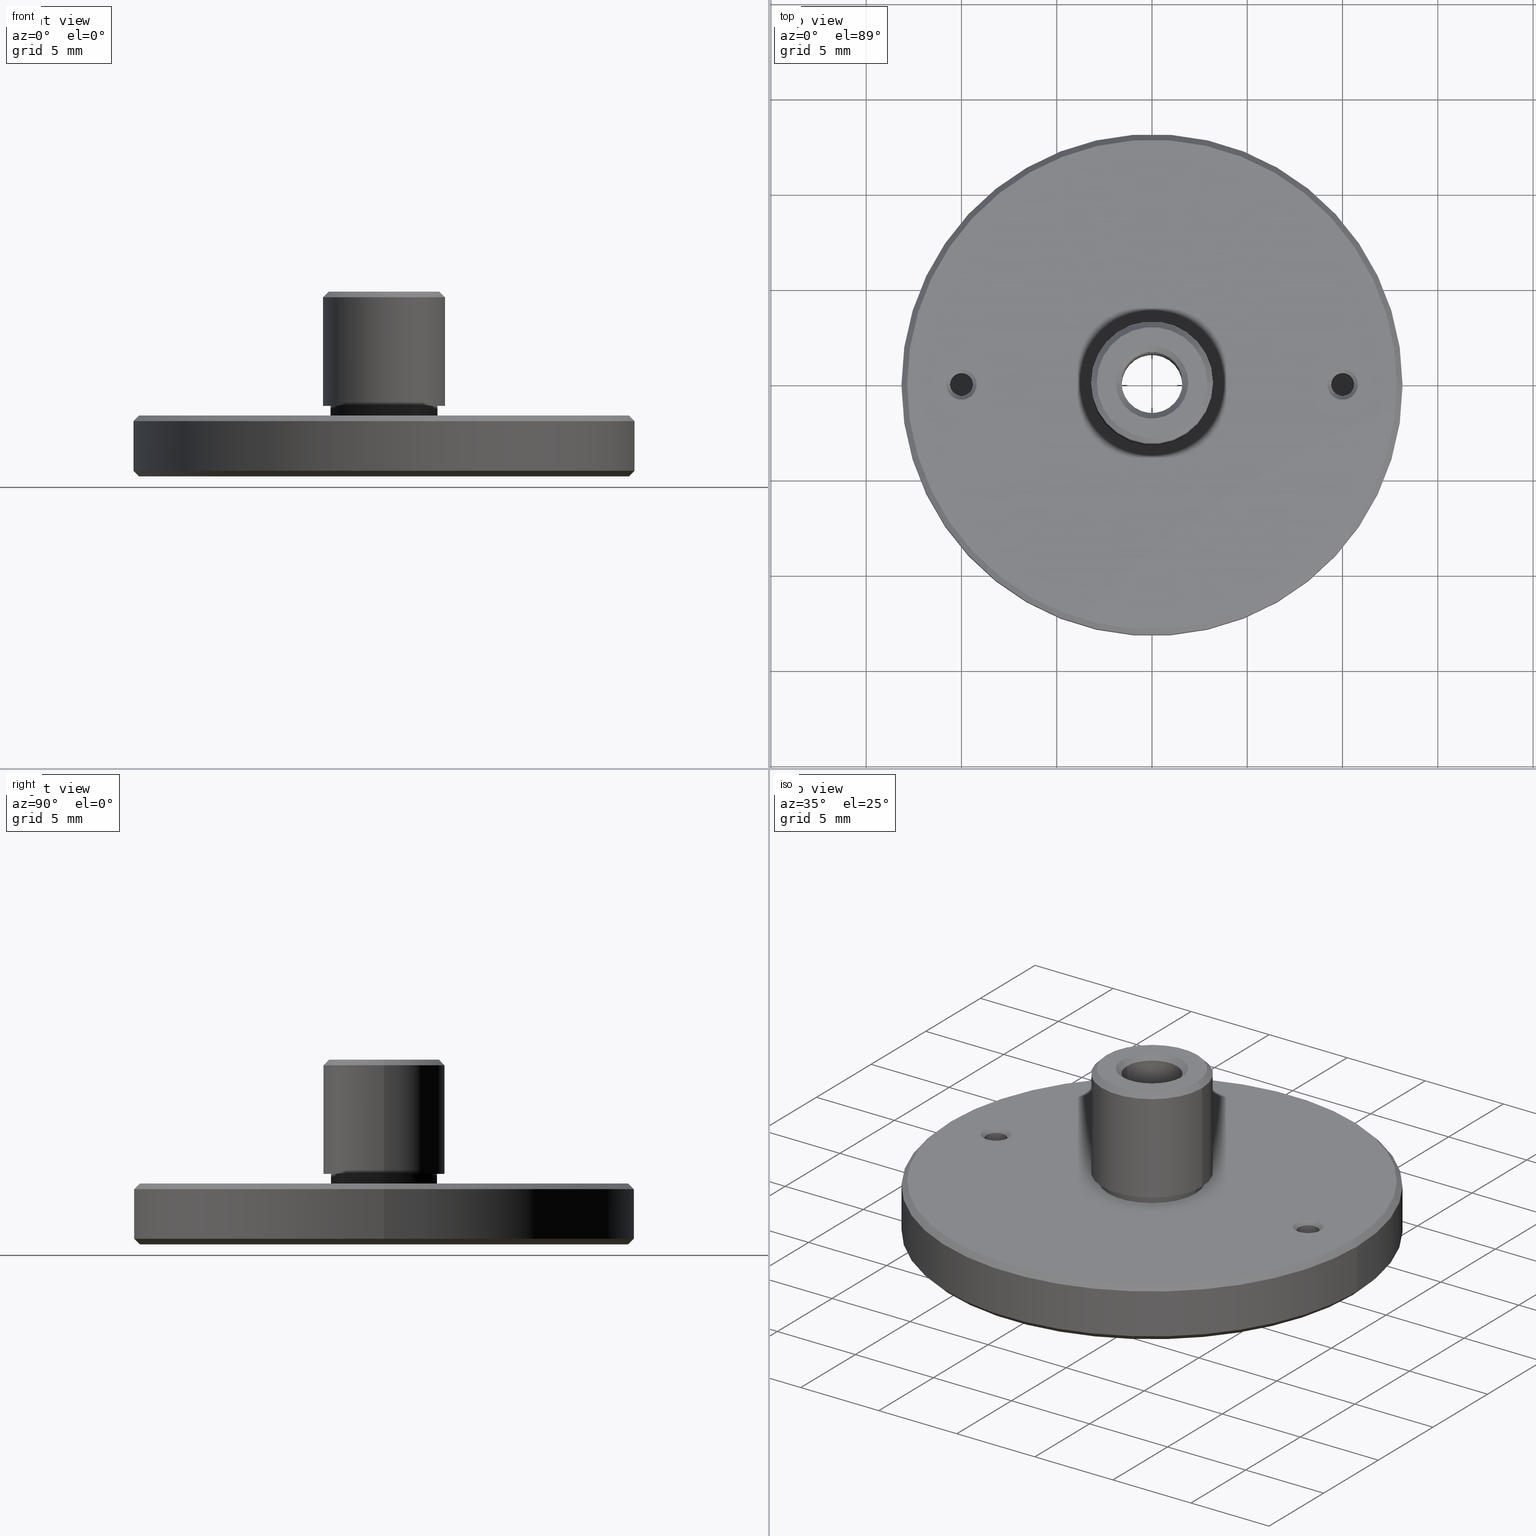
[diagram: canonical four-view strip — front | top / right | iso, engineering-drawing reading convention]
A machine part, canonical four-view strip (front | top / right | iso — engineering-drawing reading convention). The complete STEP part file that produces these views, byte-faithful:
ISO-10303-21;
HEADER;
FILE_DESCRIPTION (( 'STEP AP203' ),
    '1' );
FILE_NAME ('528304�����˷��� SMA��ͷ SM1������.STEP',
    '2023-07-28T03:24:24',
    ( 'Windows User' ),
    ( 'P R C' ),
    'SwSTEP 2.0',
    'SolidWorks 2020',
    '' );
FILE_SCHEMA (( 'CONFIG_CONTROL_DESIGN' ));
ENDSEC;

DATA;
#1 = ORIENTED_EDGE ( 'NONE', *, *, #421, .F. ) ;
#2 = CARTESIAN_POINT ( 'NONE',  ( 1.600000000000000089, 0.000000000000000000, 0.3000000000000000444 ) ) ;
#3 = DIRECTION ( 'NONE',  ( 0.7071067811865450192, 8.659560562354902043E-17, -0.7071067811865500152 ) ) ;
#4 = ORIENTED_EDGE ( 'NONE', *, *, #708, .T. ) ;
#5 = AXIS2_PLACEMENT_3D ( 'NONE', #737, #36, #343 ) ;
#6 = DIRECTION ( 'NONE',  ( 1.000000000000000000, 0.000000000000000000, -4.336808689942018525E-15 ) ) ;
#7 = FACE_OUTER_BOUND ( 'NONE', #330, .T. ) ;
#8 = ORIENTED_EDGE ( 'NONE', *, *, #310, .F. ) ;
#9 = AXIS2_PLACEMENT_3D ( 'NONE', #472, #252, #542 ) ;
#10 = CARTESIAN_POINT ( 'NONE',  ( 0.000000000000000000, 0.000000000000000000, 3.200000000000091660 ) ) ;
#11 = CARTESIAN_POINT ( 'NONE',  ( -12.85000000000000142, 1.573671136904349257E-15, 0.000000000000000000 ) ) ;
#12 = EDGE_LOOP ( 'NONE', ( #459, #114, #479, #253 ) ) ;
#13 = DIRECTION ( 'NONE',  ( 1.000000000000000000, 0.000000000000000000, 0.000000000000000000 ) ) ;
#14 = DIRECTION ( 'NONE',  ( -0.7071067811865483499, 8.659560562354942719E-17, 0.7071067811865467956 ) ) ;
#15 = PERSON_AND_ORGANIZATION ( #385, #897 ) ;
#16 = DIRECTION ( 'NONE',  ( -0.000000000000000000, -0.000000000000000000, 1.000000000000000000 ) ) ;
#17 = VECTOR ( 'NONE', #3, 1000.000000000000000 ) ;
#18 = ADVANCED_FACE ( 'NONE', ( #470 ), #121, .F. ) ;
#19 = EDGE_CURVE ( 'NONE', #111, #56, #547, .T. ) ;
#20 = DIRECTION ( 'NONE',  ( -1.000000000000000000, 0.000000000000000000, 0.000000000000000000 ) ) ;
#21 = COORDINATED_UNIVERSAL_TIME_OFFSET ( 8, 0, .AHEAD. ) ;
#22 = ORIENTED_EDGE ( 'NONE', *, *, #19, .F. ) ;
#23 = FACE_BOUND ( 'NONE', #383, .T. ) ;
#24 = CIRCLE ( 'NONE', #545, 13.15000000000000036 ) ;
#25 = DIRECTION ( 'NONE',  ( -0.7071067811865453523, 8.659560562354906974E-17, 0.7071067811865496822 ) ) ;
#26 = ORIENTED_EDGE ( 'NONE', *, *, #476, .F. ) ;
#27 = DIRECTION ( 'NONE',  ( 1.000000000000000000, 0.000000000000000000, 0.000000000000000000 ) ) ;
#28 = EDGE_CURVE ( 'NONE', #314, #906, #474, .T. ) ;
#29 = CARTESIAN_POINT ( 'NONE',  ( 12.85000000000000142, 0.000000000000000000, 0.000000000000000000 ) ) ;
#30 = ORIENTED_EDGE ( 'NONE', *, *, #546, .T. ) ;
#31 = CARTESIAN_POINT ( 'NONE',  ( -1.899999999999930633, 2.326828918379886069E-16, 9.699999999999931788 ) ) ;
#32 = CIRCLE ( 'NONE', #595, 3.200000000000000178 ) ;
#33 = DIRECTION ( 'NONE',  ( 1.000000000000000000, 0.000000000000000000, 0.000000000000000000 ) ) ;
#34 = DATE_TIME_ROLE ( 'creation_date' ) ;
#35 = EDGE_LOOP ( 'NONE', ( #388, #431 ) ) ;
#36 = DIRECTION ( 'NONE',  ( -0.000000000000000000, -0.000000000000000000, -1.000000000000000000 ) ) ;
#37 = AXIS2_PLACEMENT_3D ( 'NONE', #697, #627, #186 ) ;
#38 = AXIS2_PLACEMENT_3D ( 'NONE', #300, #730, #20 ) ;
#39 = EDGE_CURVE ( 'NONE', #434, #918, #213, .T. ) ;
#40 = VECTOR ( 'NONE', #198, 1000.000000000000000 ) ;
#41 = CARTESIAN_POINT ( 'NONE',  ( 10.00000000000000000, 0.000000000000000000, 1.700000000000000178 ) ) ;
#42 = CARTESIAN_POINT ( 'NONE',  ( 0.000000000000000000, 0.000000000000000000, 2.899999999999902656 ) ) ;
#43 = ORIENTED_EDGE ( 'NONE', *, *, #844, .T. ) ;
#44 = DIRECTION ( 'NONE',  ( -0.000000000000000000, 0.000000000000000000, -1.000000000000000000 ) ) ;
#45 = CARTESIAN_POINT ( 'NONE',  ( 9.200000000000018829, 9.797174393178595655E-17, 3.199999999999981082 ) ) ;
#46 = FACE_OUTER_BOUND ( 'NONE', #311, .T. ) ;
#47 = VERTEX_POINT ( 'NONE', #324 ) ;
#48 = LINE ( 'NONE', #331, #40 ) ;
#49 = LOCAL_TIME ( 11, 24, 24.00000000000000000, #878 ) ;
#50 = CIRCLE ( 'NONE', #688, 0.5999999999999998668 ) ;
#51 = EDGE_CURVE ( 'NONE', #909, #243, #581, .T. ) ;
#52 = AXIS2_PLACEMENT_3D ( 'NONE', #634, #430, #284 ) ;
#53 = CARTESIAN_POINT ( 'NONE',  ( 9.392800000000001148, -0.6072000000000000730, 1.700000000000000178 ) ) ;
#54 = PLANE ( 'NONE',  #436 ) ;
#55 = EDGE_CURVE ( 'NONE', #319, #141, #815, .T. ) ;
#56 = VERTEX_POINT ( 'NONE', #488 ) ;
#57 = DIRECTION ( 'NONE',  ( 1.000000000000000000, 0.000000000000000000, 0.000000000000000000 ) ) ;
#58 = LOCAL_TIME ( 11, 24, 24.00000000000000000, #524 ) ;
#59 = CARTESIAN_POINT ( 'NONE',  ( 10.00000000000000000, 0.000000000000000000, 1.700000000000000178 ) ) ;
#60 = EDGE_LOOP ( 'NONE', ( #307, #857, #556, #820 ) ) ;
#61 = EDGE_CURVE ( 'NONE', #133, #485, #272, .T. ) ;
#62 = ORIENTED_EDGE ( 'NONE', *, *, #844, .F. ) ;
#63 = CARTESIAN_POINT ( 'NONE',  ( -10.00000000000000000, 0.000000000000000000, 3.000000000000002665 ) ) ;
#64 = DIRECTION ( 'NONE',  ( -1.000000000000000000, 0.000000000000000000, 7.387415563095148275E-15 ) ) ;
#65 = ORIENTED_EDGE ( 'NONE', *, *, #411, .T. ) ;
#66 = CONICAL_SURFACE ( 'NONE', #195, 12.85000000000000142, 0.7853981633974452814 ) ;
#67 = ADVANCED_FACE ( 'NONE', ( #46 ), #66, .T. ) ;
#68 = DIRECTION ( 'NONE',  ( -1.000000000000000000, 0.000000000000000000, 0.000000000000000000 ) ) ;
#69 = ORIENTED_EDGE ( 'NONE', *, *, #217, .T. ) ;
#70 = APPLICATION_PROTOCOL_DEFINITION ( 'international standard', 'config_control_design', 1994, #374 ) ;
#71 = EDGE_CURVE ( 'NONE', #442, #335, #345, .T. ) ;
#72 = DIRECTION ( 'NONE',  ( 0.000000000000000000, -0.000000000000000000, 1.000000000000000000 ) ) ;
#73 = CONICAL_SURFACE ( 'NONE', #332, 12.85000000000000142, 0.7853981633974447263 ) ;
#74 = AXIS2_PLACEMENT_3D ( 'NONE', #327, #113, #401 ) ;
#75 = ORIENTED_EDGE ( 'NONE', *, *, #582, .F. ) ;
#76 = ORIENTED_EDGE ( 'NONE', *, *, #582, .T. ) ;
#77 = CARTESIAN_POINT ( 'NONE',  ( 0.000000000000000000, 0.000000000000000000, 3.700000000000000178 ) ) ;
#78 = FACE_OUTER_BOUND ( 'NONE', #60, .T. ) ;
#79 = ORIENTED_EDGE ( 'NONE', *, *, #227, .T. ) ;
#80 = DIRECTION ( 'NONE',  ( -0.000000000000000000, -0.000000000000000000, 1.000000000000000000 ) ) ;
#81 = DIRECTION ( 'NONE',  ( 0.000000000000000000, -0.000000000000000000, 1.000000000000000000 ) ) ;
#82 = ADVANCED_FACE ( 'NONE', ( #538 ), #233, .F. ) ;
#83 = ORIENTED_EDGE ( 'NONE', *, *, #507, .T. ) ;
#84 = VECTOR ( 'NONE', #180, 999.9999999999998863 ) ;
#85 = CONICAL_SURFACE ( 'NONE', #631, 2.899999999999999911, 0.7853981633974490562 ) ;
#86 = VECTOR ( 'NONE', #14, 999.9999999999998863 ) ;
#87 = ORIENTED_EDGE ( 'NONE', *, *, #224, .F. ) ;
#88 =( NAMED_UNIT ( * ) SI_UNIT ( $, .STERADIAN. ) SOLID_ANGLE_UNIT ( ) );
#89 = CYLINDRICAL_SURFACE ( 'NONE', #321, 13.15000000000000036 ) ;
#90 = APPROVAL_DATE_TIME ( #391, #463 ) ;
#91 = PLANE ( 'NONE',  #558 ) ;
#92 = EDGE_CURVE ( 'NONE', #678, #442, #136, .T. ) ;
#93 = DIRECTION ( 'NONE',  ( -0.000000000000000000, -0.000000000000000000, -1.000000000000000000 ) ) ;
#94 = VECTOR ( 'NONE', #484, 1000.000000000000000 ) ;
#95 = VERTEX_POINT ( 'NONE', #749 ) ;
#96 = DIRECTION ( 'NONE',  ( -0.7071067811865481278, 0.000000000000000000, -0.7071067811865470176 ) ) ;
#97 = AXIS2_PLACEMENT_3D ( 'NONE', #776, #780, #710 ) ;
#98 = UNCERTAINTY_MEASURE_WITH_UNIT (LENGTH_MEASURE( 1.000000000000000082E-05 ), #774, 'distance_accuracy_value', 'NONE');
#99 = EDGE_CURVE ( 'NONE', #678, #368, #912, .T. ) ;
#100 = CARTESIAN_POINT ( 'NONE',  ( 0.000000000000000000, 0.000000000000000000, 9.399999999999963052 ) ) ;
#101 = PERSON_AND_ORGANIZATION ( #385, #897 ) ;
#102 = ORIENTED_EDGE ( 'NONE', *, *, #444, .F. ) ;
#103 = DIRECTION ( 'NONE',  ( -1.000000000000000000, 0.000000000000000000, 0.000000000000000000 ) ) ;
#104 = CIRCLE ( 'NONE', #851, 3.200000000000000178 ) ;
#105 = DIRECTION ( 'NONE',  ( -1.000000000000000000, 0.000000000000000000, 0.000000000000000000 ) ) ;
#106 = VERTEX_POINT ( 'NONE', #606 ) ;
#107 = CARTESIAN_POINT ( 'NONE',  ( 2.799999999999999822, 0.000000000000000000, 3.700000000000000178 ) ) ;
#108 = FACE_OUTER_BOUND ( 'NONE', #35, .T. ) ;
#109 = SHAPE_DEFINITION_REPRESENTATION ( #429, #458 ) ;
#110 = APPLICATION_CONTEXT ( 'configuration controlled 3d designs of mechanical parts and assemblies' ) ;
#111 = VERTEX_POINT ( 'NONE', #754 ) ;
#112 = CARTESIAN_POINT ( 'NONE',  ( -3.200000000000000178, 0.000000000000000000, 9.400000000000000355 ) ) ;
#113 = DIRECTION ( 'NONE',  ( 0.000000000000000000, -0.000000000000000000, 1.000000000000000000 ) ) ;
#114 = ORIENTED_EDGE ( 'NONE', *, *, #516, .T. ) ;
#115 = DIRECTION ( 'NONE',  ( 0.000000000000000000, 0.000000000000000000, -1.000000000000000000 ) ) ;
#116 = AXIS2_PLACEMENT_3D ( 'NONE', #209, #72, #491 ) ;
#117 = APPROVAL_PERSON_ORGANIZATION ( #793, #463, #592 ) ;
#118 = CYLINDRICAL_SURFACE ( 'NONE', #338, 3.200000000000000178 ) ;
#119 = AXIS2_PLACEMENT_3D ( 'NONE', #238, #382, #591 ) ;
#120 = DIRECTION ( 'NONE',  ( 0.000000000000000000, 0.000000000000000000, -1.000000000000000000 ) ) ;
#121 = CYLINDRICAL_SURFACE ( 'NONE', #347, 1.600000000000000089 ) ;
#122 = DIRECTION ( 'NONE',  ( -1.000000000000000000, 0.000000000000000000, 0.000000000000000000 ) ) ;
#123 = ADVANCED_FACE ( 'NONE', ( #888 ), #85, .T. ) ;
#124 = ADVANCED_FACE ( 'NONE', ( #818 ), #672, .F. ) ;
#125 = CYLINDRICAL_SURFACE ( 'NONE', #764, 0.5999999999999998668 ) ;
#126 = DIRECTION ( 'NONE',  ( 1.000000000000000000, 0.000000000000000000, 0.000000000000000000 ) ) ;
#127 = VERTEX_POINT ( 'NONE', #611 ) ;
#128 = DIRECTION ( 'NONE',  ( 0.000000000000000000, -0.000000000000000000, 1.000000000000000000 ) ) ;
#129 = VECTOR ( 'NONE', #798, 1000.000000000000000 ) ;
#130 = EDGE_CURVE ( 'NONE', #133, #127, #352, .T. ) ;
#131 = DIRECTION ( 'NONE',  ( 1.000000000000000000, 0.000000000000000000, 0.000000000000000000 ) ) ;
#132 = ORIENTED_EDGE ( 'NONE', *, *, #771, .T. ) ;
#133 = VERTEX_POINT ( 'NONE', #200 ) ;
#134 = CYLINDRICAL_SURFACE ( 'NONE', #648, 3.200000000000000178 ) ;
#135 = VECTOR ( 'NONE', #295, 1000.000000000000000 ) ;
#136 = LINE ( 'NONE', #473, #317 ) ;
#137 = CIRCLE ( 'NONE', #280, 0.7999999999999812816 ) ;
#138 = EDGE_LOOP ( 'NONE', ( #736, #603 ) ) ;
#139 = VERTEX_POINT ( 'NONE', #140 ) ;
#140 = CARTESIAN_POINT ( 'NONE',  ( -1.899999999999999911, 0.000000000000000000, 0.000000000000000000 ) ) ;
#141 = VERTEX_POINT ( 'NONE', #543 ) ;
#142 = ADVANCED_FACE ( 'NONE', ( #559 ), #550, .F. ) ;
#143 = CARTESIAN_POINT ( 'NONE',  ( 1.899999999999999911, 2.326828918379971365E-16, 0.000000000000000000 ) ) ;
#144 = CIRCLE ( 'NONE', #655, 0.7999999999999812816 ) ;
#145 = ORIENTED_EDGE ( 'NONE', *, *, #612, .T. ) ;
#146 = ORIENTED_EDGE ( 'NONE', *, *, #99, .F. ) ;
#147 = DIRECTION ( 'NONE',  ( -0.000000000000000000, -0.000000000000000000, -1.000000000000000000 ) ) ;
#148 = DIRECTION ( 'NONE',  ( 0.000000000000000000, 0.000000000000000000, -1.000000000000000000 ) ) ;
#149 = CC_DESIGN_APPROVAL ( #645, ( #235 ) ) ;
#150 = EDGE_LOOP ( 'NONE', ( #378, #843, #607, #784 ) ) ;
#151 = DIRECTION ( 'NONE',  ( 1.000000000000000000, 0.000000000000000000, 0.000000000000000000 ) ) ;
#152 = EDGE_CURVE ( 'NONE', #363, #56, #599, .T. ) ;
#153 = FACE_OUTER_BOUND ( 'NONE', #12, .T. ) ;
#154 = ORIENTED_EDGE ( 'NONE', *, *, #512, .F. ) ;
#155 = VERTEX_POINT ( 'NONE', #467 ) ;
#156 = PERSON_AND_ORGANIZATION ( #385, #897 ) ;
#157 = DIRECTION ( 'NONE',  ( 1.000000000000000000, 0.000000000000000000, 0.000000000000000000 ) ) ;
#158 = AXIS2_PLACEMENT_3D ( 'NONE', #232, #456, #304 ) ;
#159 = VECTOR ( 'NONE', #405, 1000.000000000000000 ) ;
#160 = EDGE_CURVE ( 'NONE', #434, #705, #894, .T. ) ;
#161 = CARTESIAN_POINT ( 'NONE',  ( -13.15000000000000036, 0.000000000000000000, 2.899999999999999911 ) ) ;
#162 = AXIS2_PLACEMENT_3D ( 'NONE', #890, #259, #122 ) ;
#163 = CARTESIAN_POINT ( 'NONE',  ( 3.200000000000000178, 3.918869757271530460E-16, 9.400000000000000355 ) ) ;
#164 = PERSON_AND_ORGANIZATION ( #385, #897 ) ;
#165 = ORIENTED_EDGE ( 'NONE', *, *, #55, .F. ) ;
#166 = CARTESIAN_POINT ( 'NONE',  ( 0.000000000000000000, 0.000000000000000000, 3.200000000000000178 ) ) ;
#167 = ADVANCED_FACE ( 'NONE', ( #262, #687 ), #54, .T. ) ;
#168 = LINE ( 'NONE', #856, #515 ) ;
#169 = AXIS2_PLACEMENT_3D ( 'NONE', #604, #393, #874 ) ;
#170 = EDGE_LOOP ( 'NONE', ( #1, #287, #711, #658 ) ) ;
#171 = CARTESIAN_POINT ( 'NONE',  ( 12.84999999999991083, 1.592040838891553771E-15, 3.200000000000091660 ) ) ;
#172 = LINE ( 'NONE', #786, #247 ) ;
#173 = PERSON_AND_ORGANIZATION_ROLE ( 'creator' ) ;
#174 = ORIENTED_EDGE ( 'NONE', *, *, #354, .F. ) ;
#175 = DIRECTION ( 'NONE',  ( 0.000000000000000000, -0.000000000000000000, 1.000000000000000000 ) ) ;
#176 = APPROVAL_PERSON_ORGANIZATION ( #101, #370, #452 ) ;
#177 = ADVANCED_FACE ( 'NONE', ( #153 ), #510, .F. ) ;
#178 = FACE_OUTER_BOUND ( 'NONE', #717, .T. ) ;
#179 = ORIENTED_EDGE ( 'NONE', *, *, #639, .F. ) ;
#180 = DIRECTION ( 'NONE',  ( -0.7071067811865483499, 8.659560562354942719E-17, 0.7071067811865467956 ) ) ;
#181 = CARTESIAN_POINT ( 'NONE',  ( 0.000000000000000000, 0.000000000000000000, 9.400000000000000355 ) ) ;
#182 = APPROVAL_STATUS ( 'not_yet_approved' ) ;
#183 = ORIENTED_EDGE ( 'NONE', *, *, #227, .F. ) ;
#184 = DIRECTION ( 'NONE',  ( 1.000000000000000000, 0.000000000000000000, 0.000000000000000000 ) ) ;
#185 = DIRECTION ( 'NONE',  ( 0.000000000000000000, -0.000000000000000000, 1.000000000000000000 ) ) ;
#186 = DIRECTION ( 'NONE',  ( -1.000000000000000000, 0.000000000000000000, 0.000000000000000000 ) ) ;
#187 = ADVANCED_FACE ( 'NONE', ( #214 ), #73, .T. ) ;
#188 = EDGE_LOOP ( 'NONE', ( #662, #102 ) ) ;
#189 = DIRECTION ( 'NONE',  ( 0.000000000000000000, 0.000000000000000000, 1.000000000000000000 ) ) ;
#190 = CARTESIAN_POINT ( 'NONE',  ( 0.000000000000000000, 0.000000000000000000, 2.899999999999902656 ) ) ;
#191 = CARTESIAN_POINT ( 'NONE',  ( -10.00000000000000000, 0.000000000000000000, 1.700000000000000178 ) ) ;
#192 = DIRECTION ( 'NONE',  ( 0.7071067811865474617, 0.000000000000000000, 0.7071067811865474617 ) ) ;
#193 = FACE_OUTER_BOUND ( 'NONE', #714, .T. ) ;
#194 = DIRECTION ( 'NONE',  ( 0.000000000000000000, 0.000000000000000000, 1.000000000000000000 ) ) ;
#195 = AXIS2_PLACEMENT_3D ( 'NONE', #676, #908, #415 ) ;
#196 = ORIENTED_EDGE ( 'NONE', *, *, #61, .T. ) ;
#197 = VERTEX_POINT ( 'NONE', #143 ) ;
#198 = DIRECTION ( 'NONE',  ( 0.7071067811865474617, 8.659560562354931626E-17, -0.7071067811865476838 ) ) ;
#199 = CIRCLE ( 'NONE', #409, 1.899999999999999911 ) ;
#200 = CARTESIAN_POINT ( 'NONE',  ( -2.799999999999999822, 3.429011037612588783E-16, 3.200000000000000178 ) ) ;
#201 = ORIENTED_EDGE ( 'NONE', *, *, #293, .F. ) ;
#202 = ORIENTED_EDGE ( 'NONE', *, *, #130, .F. ) ;
#203 = AXIS2_PLACEMENT_3D ( 'NONE', #59, #406, #131 ) ;
#204 = AXIS2_PLACEMENT_3D ( 'NONE', #872, #523, #801 ) ;
#205 = DIRECTION ( 'NONE',  ( -0.000000000000000000, 0.000000000000000000, -1.000000000000000000 ) ) ;
#206 = CIRCLE ( 'NONE', #840, 0.5999999999999998668 ) ;
#207 = ORIENTED_EDGE ( 'NONE', *, *, #92, .F. ) ;
#208 = PRODUCT_RELATED_PRODUCT_CATEGORY ( 'detail', '', ( #781 ) ) ;
#209 = CARTESIAN_POINT ( 'NONE',  ( -10.00000000000000000, 0.000000000000000000, 3.000000000000000000 ) ) ;
#210 = ORIENTED_EDGE ( 'NONE', *, *, #887, .F. ) ;
#211 = ORIENTED_EDGE ( 'NONE', *, *, #692, .F. ) ;
#212 = PERSON_AND_ORGANIZATION_ROLE ( 'design_owner' ) ;
#213 = CIRCLE ( 'NONE', #462, 3.200000000000000178 ) ;
#214 = FACE_OUTER_BOUND ( 'NONE', #276, .T. ) ;
#215 = AXIS2_PLACEMENT_3D ( 'NONE', #574, #148, #68 ) ;
#216 = ORIENTED_EDGE ( 'NONE', *, *, #665, .T. ) ;
#217 = EDGE_CURVE ( 'NONE', #111, #356, #848, .T. ) ;
#218 = CARTESIAN_POINT ( 'NONE',  ( 0.000000000000000000, 0.000000000000000000, 0.000000000000000000 ) ) ;
#219 = ADVANCED_FACE ( 'NONE', ( #78 ), #892, .F. ) ;
#220 = FACE_OUTER_BOUND ( 'NONE', #593, .T. ) ;
#221 = LOCAL_TIME ( 11, 24, 24.00000000000000000, #21 ) ;
#222 = VERTEX_POINT ( 'NONE', #355 ) ;
#223 = DIRECTION ( 'NONE',  ( 0.000000000000000000, 0.000000000000000000, -1.000000000000000000 ) ) ;
#224 = EDGE_CURVE ( 'NONE', #777, #47, #377, .T. ) ;
#225 = CARTESIAN_POINT ( 'NONE',  ( 12.85000000000000142, 1.573671136904349257E-15, 3.200000000000000178 ) ) ;
#226 = EDGE_LOOP ( 'NONE', ( #895, #770 ) ) ;
#227 = EDGE_CURVE ( 'NONE', #368, #335, #629, .T. ) ;
#228 = CC_DESIGN_APPROVAL ( #370, ( #451 ) ) ;
#229 = DIRECTION ( 'NONE',  ( -0.7071067811865474617, 8.659560562354932858E-17, 0.7071067811865474617 ) ) ;
#230 = EDGE_LOOP ( 'NONE', ( #772, #420, #552, #829 ) ) ;
#231 = PERSON_AND_ORGANIZATION ( #385, #897 ) ;
#232 = CARTESIAN_POINT ( 'NONE',  ( -10.00000000000000000, 0.000000000000000000, 1.700000000000000178 ) ) ;
#233 = CONICAL_SURFACE ( 'NONE', #585, 0.5999999999999998668, 0.7853981633974492782 ) ;
#234 = AXIS2_PLACEMENT_3D ( 'NONE', #823, #810, #33 ) ;
#235 = PRODUCT_DEFINITION ( 'δ֪', '', #618, #373 ) ;
#236 = VERTEX_POINT ( 'NONE', #712 ) ;
#237 = FACE_BOUND ( 'NONE', #392, .T. ) ;
#238 = CARTESIAN_POINT ( 'NONE',  ( 0.000000000000000000, 0.000000000000000000, 0.2999999999999669598 ) ) ;
#239 = ORIENTED_EDGE ( 'NONE', *, *, #771, .F. ) ;
#240 = PLANE ( 'NONE',  #169 ) ;
#241 = CARTESIAN_POINT ( 'NONE',  ( -12.84999999999991083, 0.000000000000000000, 3.200000000000091660 ) ) ;
#242 = PERSON_AND_ORGANIZATION ( #385, #897 ) ;
#243 = VERTEX_POINT ( 'NONE', #362 ) ;
#244 = LINE ( 'NONE', #526, #289 ) ;
#245 = ADVANCED_FACE ( 'NONE', ( #220 ), #497, .F. ) ;
#246 = CARTESIAN_POINT ( 'NONE',  ( -10.00000000000000000, 0.000000000000000000, 3.199999999999981082 ) ) ;
#247 = VECTOR ( 'NONE', #583, 1000.000000000000000 ) ;
#248 = DATE_TIME_ROLE ( 'classification_date' ) ;
#249 = ORIENTED_EDGE ( 'NONE', *, *, #734, .F. ) ;
#250 = DIRECTION ( 'NONE',  ( 1.000000000000000000, 0.000000000000000000, 0.000000000000000000 ) ) ;
#251 = AXIS2_PLACEMENT_3D ( 'NONE', #271, #189, #896 ) ;
#252 = DIRECTION ( 'NONE',  ( 0.000000000000000000, -0.000000000000000000, 1.000000000000000000 ) ) ;
#253 = ORIENTED_EDGE ( 'NONE', *, *, #310, .T. ) ;
#254 = CARTESIAN_POINT ( 'NONE',  ( 13.15000000000000036, 1.610410540878769328E-15, 2.899999999999902656 ) ) ;
#255 = CARTESIAN_POINT ( 'NONE',  ( -1.600000000000000089, 1.959434878635765230E-16, 0.2999999999999669598 ) ) ;
#256 = DIRECTION ( 'NONE',  ( -1.000000000000000000, 0.000000000000000000, 0.000000000000000000 ) ) ;
#257 = ADVANCED_FACE ( 'NONE', ( #7 ), #853, .T. ) ;
#258 = ORIENTED_EDGE ( 'NONE', *, *, #51, .F. ) ;
#259 = DIRECTION ( 'NONE',  ( 0.000000000000000000, 0.000000000000000000, -1.000000000000000000 ) ) ;
#260 = VECTOR ( 'NONE', #389, 999.9999999999998863 ) ;
#261 = FACE_OUTER_BOUND ( 'NONE', #850, .T. ) ;
#262 = FACE_BOUND ( 'NONE', #889, .T. ) ;
#263 = EDGE_CURVE ( 'NONE', #243, #782, #846, .T. ) ;
#264 = DIRECTION ( 'NONE',  ( 1.000000000000000000, 0.000000000000000000, 0.000000000000000000 ) ) ;
#265 = CARTESIAN_POINT ( 'NONE',  ( 0.000000000000000000, 0.000000000000000000, 3.200000000000000178 ) ) ;
#266 = AXIS2_PLACEMENT_3D ( 'NONE', #190, #615, #267 ) ;
#267 = DIRECTION ( 'NONE',  ( -1.000000000000000000, 0.000000000000000000, 7.387415563095148275E-15 ) ) ;
#268 = DIRECTION ( 'NONE',  ( 1.000000000000000000, 0.000000000000000000, 0.000000000000000000 ) ) ;
#269 = ORIENTED_EDGE ( 'NONE', *, *, #867, .F. ) ;
#270 = ORIENTED_EDGE ( 'NONE', *, *, #39, .F. ) ;
#271 = CARTESIAN_POINT ( 'NONE',  ( 0.000000000000000000, 0.000000000000000000, 0.000000000000000000 ) ) ;
#272 = LINE ( 'NONE', #683, #94 ) ;
#273 = EDGE_LOOP ( 'NONE', ( #407, #412 ) ) ;
#274 = EDGE_LOOP ( 'NONE', ( #360, #617, #75, #179 ) ) ;
#275 = DIRECTION ( 'NONE',  ( -0.000000000000000000, 0.000000000000000000, -1.000000000000000000 ) ) ;
#276 = EDGE_LOOP ( 'NONE', ( #845, #79, #870, #207 ) ) ;
#277 = AXIS2_PLACEMENT_3D ( 'NONE', #824, #757, #329 ) ;
#278 = VECTOR ( 'NONE', #229, 1000.000000000000114 ) ;
#279 = DIRECTION ( 'NONE',  ( -1.000000000000000000, 0.000000000000000000, 0.000000000000000000 ) ) ;
#280 = AXIS2_PLACEMENT_3D ( 'NONE', #621, #831, #57 ) ;
#281 = ORIENTED_EDGE ( 'NONE', *, *, #55, .T. ) ;
#282 = AXIS2_PLACEMENT_3D ( 'NONE', #735, #661, #578 ) ;
#283 = DIRECTION ( 'NONE',  ( 0.000000000000000000, -0.000000000000000000, 1.000000000000000000 ) ) ;
#284 = DIRECTION ( 'NONE',  ( -1.000000000000000000, 0.000000000000000000, 2.066760391300492827E-14 ) ) ;
#285 = ORIENTED_EDGE ( 'NONE', *, *, #160, .T. ) ;
#286 = EDGE_CURVE ( 'NONE', #106, #750, #422, .T. ) ;
#287 = ORIENTED_EDGE ( 'NONE', *, *, #681, .T. ) ;
#288 = CARTESIAN_POINT ( 'NONE',  ( 3.200000000000000178, 3.918869757271530460E-16, 9.400000000000000355 ) ) ;
#289 = VECTOR ( 'NONE', #175, 1000.000000000000000 ) ;
#290 = CARTESIAN_POINT ( 'NONE',  ( 0.000000000000000000, 0.000000000000000000, 9.699999999999931788 ) ) ;
#291 = ORIENTED_EDGE ( 'NONE', *, *, #609, .F. ) ;
#292 = CARTESIAN_POINT ( 'NONE',  ( 0.000000000000000000, 0.000000000000000000, 0.2999999999999999334 ) ) ;
#293 = EDGE_CURVE ( 'NONE', #670, #706, #703, .T. ) ;
#294 = DIRECTION ( 'NONE',  ( -0.000000000000000000, -0.000000000000000000, -1.000000000000000000 ) ) ;
#295 = DIRECTION ( 'NONE',  ( 0.000000000000000000, -0.000000000000000000, 1.000000000000000000 ) ) ;
#296 = CARTESIAN_POINT ( 'NONE',  ( -1.600000000000000089, 1.959434878635765230E-16, 9.400000000000000355 ) ) ;
#297 = ORIENTED_EDGE ( 'NONE', *, *, #619, .T. ) ;
#298 =( NAMED_UNIT ( * ) PLANE_ANGLE_UNIT ( ) SI_UNIT ( $, .RADIAN. ) );
#299 = EDGE_CURVE ( 'NONE', #56, #363, #301, .T. ) ;
#300 = CARTESIAN_POINT ( 'NONE',  ( 0.000000000000000000, 0.000000000000000000, 0.3000000000000000444 ) ) ;
#301 = CIRCLE ( 'NONE', #573, 1.899999999999931521 ) ;
#302 = CALENDAR_DATE ( 2023, 28, 7 ) ;
#303 = CARTESIAN_POINT ( 'NONE',  ( 0.000000000000000000, 0.000000000000000000, 0.000000000000000000 ) ) ;
#304 = DIRECTION ( 'NONE',  ( 1.000000000000000000, 0.000000000000000000, 0.000000000000000000 ) ) ;
#305 = APPROVAL_PERSON_ORGANIZATION ( #156, #645, #435 ) ;
#306 = COORDINATED_UNIVERSAL_TIME_OFFSET ( 8, 0, .AHEAD. ) ;
#307 = ORIENTED_EDGE ( 'NONE', *, *, #411, .F. ) ;
#308 = FACE_OUTER_BOUND ( 'NONE', #813, .T. ) ;
#309 = LINE ( 'NONE', #445, #437 ) ;
#310 = EDGE_CURVE ( 'NONE', #95, #765, #144, .T. ) ;
#311 = EDGE_LOOP ( 'NONE', ( #567, #201, #297, #325 ) ) ;
#312 = DIRECTION ( 'NONE',  ( -1.000000000000000000, 0.000000000000000000, 0.000000000000000000 ) ) ;
#313 = DIRECTION ( 'NONE',  ( -1.000000000000000000, 0.000000000000000000, 0.000000000000000000 ) ) ;
#314 = VERTEX_POINT ( 'NONE', #803 ) ;
#315 = DIRECTION ( 'NONE',  ( -1.000000000000000000, 0.000000000000000000, 0.000000000000000000 ) ) ;
#316 = CARTESIAN_POINT ( 'NONE',  ( -10.79999999999998117, 9.797174393178595655E-17, 3.199999999999981082 ) ) ;
#317 = VECTOR ( 'NONE', #410, 1000.000000000000000 ) ;
#318 = AXIS2_PLACEMENT_3D ( 'NONE', #438, #394, #675 ) ;
#319 = VERTEX_POINT ( 'NONE', #536 ) ;
#320 = PLANE ( 'NONE',  #482 ) ;
#321 = AXIS2_PLACEMENT_3D ( 'NONE', #527, #725, #105 ) ;
#322 = EDGE_CURVE ( 'NONE', #570, #95, #667, .T. ) ;
#323 = CARTESIAN_POINT ( 'NONE',  ( -2.899999999999999911, 0.000000000000000000, 9.700000000000001066 ) ) ;
#324 = CARTESIAN_POINT ( 'NONE',  ( 1.600000000000000089, 0.000000000000000000, 0.2999999999999669598 ) ) ;
#325 = ORIENTED_EDGE ( 'NONE', *, *, #867, .T. ) ;
#326 = DIRECTION ( 'NONE',  ( 0.000000000000000000, 0.000000000000000000, -1.000000000000000000 ) ) ;
#327 = CARTESIAN_POINT ( 'NONE',  ( -10.00000000000000000, 0.000000000000000000, 1.700000000000000178 ) ) ;
#328 = EDGE_CURVE ( 'NONE', #106, #918, #454, .T. ) ;
#329 = DIRECTION ( 'NONE',  ( -1.000000000000000000, 0.000000000000000000, 0.000000000000000000 ) ) ;
#330 = EDGE_LOOP ( 'NONE', ( #763, #30, #165, #741 ) ) ;
#331 = CARTESIAN_POINT ( 'NONE',  ( 1.600000000000000089, 1.959434878635765230E-16, 0.3000000000000000444 ) ) ;
#332 = AXIS2_PLACEMENT_3D ( 'NONE', #769, #498, #279 ) ;
#333 = DIRECTION ( 'NONE',  ( 0.000000000000000000, 0.000000000000000000, 1.000000000000000000 ) ) ;
#334 = CARTESIAN_POINT ( 'NONE',  ( -2.934799999999999631, -2.934799999999999631, 9.700000000000001066 ) ) ;
#335 = VERTEX_POINT ( 'NONE', #254 ) ;
#336 = ORIENTED_EDGE ( 'NONE', *, *, #28, .F. ) ;
#337 = DIRECTION ( 'NONE',  ( 1.000000000000000000, 0.000000000000000000, 0.000000000000000000 ) ) ;
#338 = AXIS2_PLACEMENT_3D ( 'NONE', #181, #817, #883 ) ;
#339 = DIRECTION ( 'NONE',  ( 1.000000000000000000, 0.000000000000000000, 0.000000000000000000 ) ) ;
#340 = ORIENTED_EDGE ( 'NONE', *, *, #692, .T. ) ;
#341 = EDGE_CURVE ( 'NONE', #750, #434, #519, .T. ) ;
#342 = DIRECTION ( 'NONE',  ( 0.000000000000000000, -0.000000000000000000, 1.000000000000000000 ) ) ;
#343 = DIRECTION ( 'NONE',  ( 1.000000000000000000, 0.000000000000000000, -4.336808689942018525E-15 ) ) ;
#344 = DIRECTION ( 'NONE',  ( 0.000000000000000000, 0.000000000000000000, -1.000000000000000000 ) ) ;
#345 = CIRCLE ( 'NONE', #698, 13.15000000000000036 ) ;
#346 = ORIENTED_EDGE ( 'NONE', *, *, #724, .F. ) ;
#347 = AXIS2_PLACEMENT_3D ( 'NONE', #613, #342, #264 ) ;
#348 = DIRECTION ( 'NONE',  ( 0.000000000000000000, -0.000000000000000000, 1.000000000000000000 ) ) ;
#349 = EDGE_LOOP ( 'NONE', ( #258, #416 ) ) ;
#350 = DIRECTION ( 'NONE',  ( 0.000000000000000000, -0.000000000000000000, 1.000000000000000000 ) ) ;
#351 = ADVANCED_FACE ( 'NONE', ( #732 ), #443, .T. ) ;
#352 = CIRCLE ( 'NONE', #861, 2.799999999999999822 ) ;
#353 = AXIS2_PLACEMENT_3D ( 'NONE', #53, #333, #785 ) ;
#354 = EDGE_CURVE ( 'NONE', #155, #236, #863, .T. ) ;
#355 = CARTESIAN_POINT ( 'NONE',  ( 3.200000000000000178, 3.918869757271530460E-16, 3.700000000000000178 ) ) ;
#356 = VERTEX_POINT ( 'NONE', #448 ) ;
#357 = VERTEX_POINT ( 'NONE', #728 ) ;
#358 = LINE ( 'NONE', #2, #135 ) ;
#359 = CARTESIAN_POINT ( 'NONE',  ( 0.000000000000000000, 0.000000000000000000, 9.700000000000001066 ) ) ;
#360 = ORIENTED_EDGE ( 'NONE', *, *, #51, .T. ) ;
#361 = AXIS2_PLACEMENT_3D ( 'NONE', #166, #814, #27 ) ;
#362 = CARTESIAN_POINT ( 'NONE',  ( -10.59999999999999964, 7.347880794884117764E-17, 1.700000000000000178 ) ) ;
#363 = VERTEX_POINT ( 'NONE', #31 ) ;
#364 = APPLICATION_PROTOCOL_DEFINITION ( 'international standard', 'config_control_design', 1994, #110 ) ;
#365 = CIRCLE ( 'NONE', #487, 0.7999999999999812816 ) ;
#366 = LINE ( 'NONE', #163, #400 ) ;
#367 = AXIS2_PLACEMENT_3D ( 'NONE', #63, #481, #614 ) ;
#368 = VERTEX_POINT ( 'NONE', #171 ) ;
#369 = CALENDAR_DATE ( 2023, 28, 7 ) ;
#370 = APPROVAL ( #182, 'δָ��' ) ;
#371 = LINE ( 'NONE', #11, #881 ) ;
#372 = CARTESIAN_POINT ( 'NONE',  ( 0.000000000000000000, 0.000000000000000000, 9.400000000000000355 ) ) ;
#373 = DESIGN_CONTEXT ( 'detailed design', #110, 'design' ) ;
#374 = APPLICATION_CONTEXT ( 'configuration controlled 3d designs of mechanical parts and assemblies' ) ;
#375 = VECTOR ( 'NONE', #192, 1000.000000000000114 ) ;
#376 = LINE ( 'NONE', #657, #86 ) ;
#377 = CIRCLE ( 'NONE', #52, 1.600000000000000089 ) ;
#378 = ORIENTED_EDGE ( 'NONE', *, *, #328, .F. ) ;
#379 = FACE_BOUND ( 'NONE', #138, .T. ) ;
#380 = ADVANCED_FACE ( 'NONE', ( #723 ), #572, .T. ) ;
#381 = ADVANCED_FACE ( 'NONE', ( #440 ), #91, .F. ) ;
#382 = DIRECTION ( 'NONE',  ( -0.000000000000000000, -0.000000000000000000, 1.000000000000000000 ) ) ;
#383 = EDGE_LOOP ( 'NONE', ( #453, #83 ) ) ;
#384 = DIRECTION ( 'NONE',  ( 0.000000000000000000, 0.000000000000000000, -1.000000000000000000 ) ) ;
#385 = PERSON ( 'δָ��', 'δָ��', 'δָ��', ('δָ��'), ('δָ��'), ('δָ��') ) ;
#386 = DIRECTION ( 'NONE',  ( -0.000000000000000000, -0.000000000000000000, -1.000000000000000000 ) ) ;
#387 = ADVANCED_FACE ( 'NONE', ( #379, #308 ), #320, .F. ) ;
#388 = ORIENTED_EDGE ( 'NONE', *, *, #293, .T. ) ;
#389 = DIRECTION ( 'NONE',  ( 0.7071067811865483499, 0.000000000000000000, 0.7071067811865467956 ) ) ;
#390 = DIRECTION ( 'NONE',  ( 0.000000000000000000, 0.000000000000000000, 1.000000000000000000 ) ) ;
#391 = DATE_AND_TIME ( #302, #221 ) ;
#392 = EDGE_LOOP ( 'NONE', ( #8, #346 ) ) ;
#393 = DIRECTION ( 'NONE',  ( 0.000000000000000000, 0.000000000000000000, 1.000000000000000000 ) ) ;
#394 = DIRECTION ( 'NONE',  ( -0.000000000000000000, 0.000000000000000000, -1.000000000000000000 ) ) ;
#395 = LOCAL_TIME ( 11, 24, 24.00000000000000000, #718 ) ;
#396 = ORIENTED_EDGE ( 'NONE', *, *, #612, .F. ) ;
#397 = DIRECTION ( 'NONE',  ( -1.000000000000000000, 0.000000000000000000, 0.000000000000000000 ) ) ;
#398 = AXIS2_PLACEMENT_3D ( 'NONE', #548, #115, #397 ) ;
#399 = CC_DESIGN_PERSON_AND_ORGANIZATION_ASSIGNMENT ( #432, #212, ( #781 ) ) ;
#400 = VECTOR ( 'NONE', #596, 1000.000000000000000 ) ;
#401 = DIRECTION ( 'NONE',  ( 1.000000000000000000, 0.000000000000000000, 0.000000000000000000 ) ) ;
#402 = DIRECTION ( 'NONE',  ( -1.000000000000000000, 0.000000000000000000, 8.244883440954406336E-18 ) ) ;
#403 = EDGE_LOOP ( 'NONE', ( #905, #624, #745, #396 ) ) ;
#404 = CARTESIAN_POINT ( 'NONE',  ( -9.400000000000000355, 0.000000000000000000, 3.000000000000000000 ) ) ;
#405 = DIRECTION ( 'NONE',  ( 0.000000000000000000, -0.000000000000000000, 1.000000000000000000 ) ) ;
#406 = DIRECTION ( 'NONE',  ( 0.000000000000000000, -0.000000000000000000, 1.000000000000000000 ) ) ;
#407 = ORIENTED_EDGE ( 'NONE', *, *, #910, .T. ) ;
#408 = DIRECTION ( 'NONE',  ( -0.000000000000000000, 0.000000000000000000, -1.000000000000000000 ) ) ;
#409 = AXIS2_PLACEMENT_3D ( 'NONE', #303, #871, #594 ) ;
#410 = DIRECTION ( 'NONE',  ( -0.7071067811865450192, 0.000000000000000000, -0.7071067811865500152 ) ) ;
#411 = EDGE_CURVE ( 'NONE', #236, #836, #531, .T. ) ;
#412 = ORIENTED_EDGE ( 'NONE', *, *, #286, .T. ) ;
#413 = ORIENTED_EDGE ( 'NONE', *, *, #734, .T. ) ;
#414 = CARTESIAN_POINT ( 'NONE',  ( 0.000000000000000000, 0.000000000000000000, 9.400000000000000355 ) ) ;
#415 = DIRECTION ( 'NONE',  ( 1.000000000000000000, 0.000000000000000000, 0.000000000000000000 ) ) ;
#416 = ORIENTED_EDGE ( 'NONE', *, *, #490, .F. ) ;
#417 = MANIFOLD_SOLID_BREP ( '����1', #496 ) ;
#418 = EDGE_LOOP ( 'NONE', ( #530, #145, #694, #620 ) ) ;
#419 = DIRECTION ( 'NONE',  ( 1.000000000000000000, 0.000000000000000000, 0.000000000000000000 ) ) ;
#420 = ORIENTED_EDGE ( 'NONE', *, *, #490, .T. ) ;
#421 = EDGE_CURVE ( 'NONE', #918, #434, #32, .T. ) ;
#422 = CIRCLE ( 'NONE', #729, 2.899999999999999911 ) ;
#423 = DIRECTION ( 'NONE',  ( 1.000000000000000000, 0.000000000000000000, 0.000000000000000000 ) ) ;
#424 = EDGE_LOOP ( 'NONE', ( #560, #132, #727, #269 ) ) ;
#425 = VERTEX_POINT ( 'NONE', #107 ) ;
#426 = AXIS2_PLACEMENT_3D ( 'NONE', #788, #147, #6 ) ;
#427 = CARTESIAN_POINT ( 'NONE',  ( -10.59999999999999964, 7.347880794884117764E-17, 1.700000000000000178 ) ) ;
#428 = CARTESIAN_POINT ( 'NONE',  ( 0.000000000000000000, 0.000000000000000000, 9.400000000000000355 ) ) ;
#429 = PRODUCT_DEFINITION_SHAPE ( 'NONE', 'NONE',  #235 ) ;
#430 = DIRECTION ( 'NONE',  ( -0.000000000000000000, -0.000000000000000000, 1.000000000000000000 ) ) ;
#431 = ORIENTED_EDGE ( 'NONE', *, *, #477, .T. ) ;
#432 = PERSON_AND_ORGANIZATION ( #385, #897 ) ;
#433 = AXIS2_PLACEMENT_3D ( 'NONE', #626, #128, #903 ) ;
#434 = VERTEX_POINT ( 'NONE', #112 ) ;
#435 = APPROVAL_ROLE ( '' ) ;
#436 = AXIS2_PLACEMENT_3D ( 'NONE', #334, #194, #339 ) ;
#437 = VECTOR ( 'NONE', #738, 1000.000000000000000 ) ;
#438 = CARTESIAN_POINT ( 'NONE',  ( 10.00000000000000000, 0.000000000000000000, 1.700000000000000178 ) ) ;
#439 = VECTOR ( 'NONE', #664, 1000.000000000000000 ) ;
#440 = FACE_OUTER_BOUND ( 'NONE', #349, .T. ) ;
#441 = DIRECTION ( 'NONE',  ( -0.000000000000000000, -0.000000000000000000, 1.000000000000000000 ) ) ;
#442 = VERTEX_POINT ( 'NONE', #659 ) ;
#443 = CYLINDRICAL_SURFACE ( 'NONE', #361, 2.799999999999999822 ) ;
#444 = EDGE_CURVE ( 'NONE', #197, #139, #199, .T. ) ;
#445 = CARTESIAN_POINT ( 'NONE',  ( -9.400000000000000355, 0.000000000000000000, 1.700000000000000178 ) ) ;
#446 = AXIS2_PLACEMENT_3D ( 'NONE', #704, #81, #423 ) ;
#447 = EDGE_LOOP ( 'NONE', ( #690, #270, #285, #340 ) ) ;
#448 = CARTESIAN_POINT ( 'NONE',  ( -1.600000000000000089, 1.959434878635765230E-16, 9.399999999999963052 ) ) ;
#449 = ADVANCED_FACE ( 'NONE', ( #584, #237, #23, #589 ), #240, .T. ) ;
#450 = FACE_OUTER_BOUND ( 'NONE', #274, .T. ) ;
#451 = SECURITY_CLASSIFICATION ( '', '', #534 ) ;
#452 = APPROVAL_ROLE ( '' ) ;
#453 = ORIENTED_EDGE ( 'NONE', *, *, #811, .T. ) ;
#454 = LINE ( 'NONE', #880, #773 ) ;
#455 = EDGE_CURVE ( 'NONE', #777, #356, #244, .T. ) ;
#456 = DIRECTION ( 'NONE',  ( 0.000000000000000000, -0.000000000000000000, 1.000000000000000000 ) ) ;
#457 = DATE_AND_TIME ( #812, #58 ) ;
#458 = ADVANCED_BREP_SHAPE_REPRESENTATION ( '528304�����˷��� SMA��ͷ SM1������', ( #417, #790 ), #469 ) ;
#459 = ORIENTED_EDGE ( 'NONE', *, *, #638, .F. ) ;
#460 = DIRECTION ( 'NONE',  ( 0.000000000000000000, 0.000000000000000000, -1.000000000000000000 ) ) ;
#461 = PLANE ( 'NONE',  #864 ) ;
#462 = AXIS2_PLACEMENT_3D ( 'NONE', #755, #902, #557 ) ;
#463 = APPROVAL ( #740, 'δָ��' ) ;
#464 = ORIENTED_EDGE ( 'NONE', *, *, #638, .T. ) ;
#465 = LINE ( 'NONE', #746, #563 ) ;
#466 = CARTESIAN_POINT ( 'NONE',  ( -10.59999999999999964, 7.347880794884117764E-17, 3.000000000000002665 ) ) ;
#467 = CARTESIAN_POINT ( 'NONE',  ( 9.400000000000000355, 7.347880794884117764E-17, 1.700000000000000178 ) ) ;
#468 = VECTOR ( 'NONE', #96, 1000.000000000000000 ) ;
#469 =( GEOMETRIC_REPRESENTATION_CONTEXT ( 3 ) GLOBAL_UNCERTAINTY_ASSIGNED_CONTEXT ( ( #98 ) ) GLOBAL_UNIT_ASSIGNED_CONTEXT ( ( #774, #298, #88 ) ) REPRESENTATION_CONTEXT ( 'NONE', 'WORKASPACE' ) );
#470 = FACE_OUTER_BOUND ( 'NONE', #403, .T. ) ;
#471 = DIRECTION ( 'NONE',  ( -0.000000000000000000, -0.000000000000000000, -1.000000000000000000 ) ) ;
#472 = CARTESIAN_POINT ( 'NONE',  ( 0.000000000000000000, 0.000000000000000000, 3.200000000000000178 ) ) ;
#473 = CARTESIAN_POINT ( 'NONE',  ( -12.85000000000000142, 0.000000000000000000, 3.200000000000000178 ) ) ;
#474 = LINE ( 'NONE', #695, #891 ) ;
#475 = CARTESIAN_POINT ( 'NONE',  ( 0.000000000000000000, 0.000000000000000000, 9.400000000000000355 ) ) ;
#476 = EDGE_CURVE ( 'NONE', #236, #314, #835, .T. ) ;
#477 = EDGE_CURVE ( 'NONE', #706, #670, #716, .T. ) ;
#478 = CARTESIAN_POINT ( 'NONE',  ( -10.00000000000000000, 0.000000000000000000, 3.000000000000000000 ) ) ;
#479 = ORIENTED_EDGE ( 'NONE', *, *, #322, .T. ) ;
#480 = ORIENTED_EDGE ( 'NONE', *, *, #217, .F. ) ;
#481 = DIRECTION ( 'NONE',  ( -0.000000000000000000, -0.000000000000000000, -1.000000000000000000 ) ) ;
#482 = AXIS2_PLACEMENT_3D ( 'NONE', #598, #663, #250 ) ;
#483 = ADVANCED_FACE ( 'NONE', ( #685 ), #756, .F. ) ;
#484 = DIRECTION ( 'NONE',  ( 0.000000000000000000, -0.000000000000000000, 1.000000000000000000 ) ) ;
#485 = VERTEX_POINT ( 'NONE', #553 ) ;
#486 = ORIENTED_EDGE ( 'NONE', *, *, #724, .T. ) ;
#487 = AXIS2_PLACEMENT_3D ( 'NONE', #246, #508, #157 ) ;
#488 = CARTESIAN_POINT ( 'NONE',  ( 1.899999999999930633, 0.000000000000000000, 9.699999999999931788 ) ) ;
#489 = ORIENTED_EDGE ( 'NONE', *, *, #477, .F. ) ;
#490 = EDGE_CURVE ( 'NONE', #243, #909, #50, .T. ) ;
#491 = DIRECTION ( 'NONE',  ( 1.000000000000000000, 0.000000000000000000, 0.000000000000000000 ) ) ;
#492 = ORIENTED_EDGE ( 'NONE', *, *, #713, .F. ) ;
#493 = EDGE_LOOP ( 'NONE', ( #506, #758, #808, #862 ) ) ;
#494 = FACE_OUTER_BOUND ( 'NONE', #418, .T. ) ;
#495 = ADVANCED_FACE ( 'NONE', ( #193 ), #915, .F. ) ;
#496 = CLOSED_SHELL ( 'NONE', ( #82, #680, #799, #245, #187, #739, #257, #544, #499, #123, #124, #495, #483, #177, #449, #787, #351, #219, #566, #381, #387, #142, #575, #744, #841, #67, #380, #775, #167, #651, #875, #18 ) ) ;
#497 = CONICAL_SURFACE ( 'NONE', #689, 0.5999999999999998668, 0.7853981633974492782 ) ;
#498 = DIRECTION ( 'NONE',  ( 0.000000000000000000, 0.000000000000000000, -1.000000000000000000 ) ) ;
#499 = ADVANCED_FACE ( 'NONE', ( #608 ), #791, .T. ) ;
#500 = ORIENTED_EDGE ( 'NONE', *, *, #512, .T. ) ;
#501 = DIRECTION ( 'NONE',  ( 0.000000000000000000, 0.000000000000000000, 1.000000000000000000 ) ) ;
#502 = CIRCLE ( 'NONE', #747, 12.84999999999991083 ) ;
#503 = DIRECTION ( 'NONE',  ( 0.000000000000000000, -0.000000000000000000, 1.000000000000000000 ) ) ;
#504 = EDGE_LOOP ( 'NONE', ( #87, #900, #480, #210 ) ) ;
#505 = EDGE_CURVE ( 'NONE', #127, #133, #882, .T. ) ;
#506 = ORIENTED_EDGE ( 'NONE', *, *, #286, .F. ) ;
#507 = EDGE_CURVE ( 'NONE', #836, #906, #137, .T. ) ;
#508 = DIRECTION ( 'NONE',  ( 0.000000000000000000, -0.000000000000000000, 1.000000000000000000 ) ) ;
#509 = DIRECTION ( 'NONE',  ( 1.000000000000000000, 0.000000000000000000, 0.000000000000000000 ) ) ;
#510 = CONICAL_SURFACE ( 'NONE', #116, 0.5999999999999998668, 0.7853981633974492782 ) ;
#511 = AXIS2_PLACEMENT_3D ( 'NONE', #77, #283, #509 ) ;
#512 = EDGE_CURVE ( 'NONE', #47, #197, #48, .T. ) ;
#513 = CARTESIAN_POINT ( 'NONE',  ( -10.00000000000000000, 0.000000000000000000, 3.000000000000002665 ) ) ;
#514 = AXIS2_PLACEMENT_3D ( 'NONE', #265, #44, #184 ) ;
#515 = VECTOR ( 'NONE', #721, 1000.000000000000000 ) ;
#516 = EDGE_CURVE ( 'NONE', #782, #570, #766, .T. ) ;
#517 = PERSON_AND_ORGANIZATION_ROLE ( 'creator' ) ;
#518 = ORIENTED_EDGE ( 'NONE', *, *, #505, .F. ) ;
#519 = LINE ( 'NONE', #653, #468 ) ;
#520 = FACE_OUTER_BOUND ( 'NONE', #424, .T. ) ;
#521 = EDGE_LOOP ( 'NONE', ( #183, #146, #640, #239 ) ) ;
#522 = CARTESIAN_POINT ( 'NONE',  ( -9.392800000000001148, -0.6072000000000000730, 1.700000000000000178 ) ) ;
#523 = DIRECTION ( 'NONE',  ( 0.000000000000000000, -0.000000000000000000, 1.000000000000000000 ) ) ;
#524 = COORDINATED_UNIVERSAL_TIME_OFFSET ( 8, 0, .AHEAD. ) ;
#525 = ORIENTED_EDGE ( 'NONE', *, *, #299, .F. ) ;
#526 = CARTESIAN_POINT ( 'NONE',  ( -1.600000000000000089, 1.959434878635765230E-16, 0.3000000000000000444 ) ) ;
#527 = CARTESIAN_POINT ( 'NONE',  ( 0.000000000000000000, 0.000000000000000000, 2.899999999999999911 ) ) ;
#528 = AXIS2_PLACEMENT_3D ( 'NONE', #707, #80, #715 ) ;
#529 = CALENDAR_DATE ( 2023, 28, 7 ) ;
#530 = ORIENTED_EDGE ( 'NONE', *, *, #708, .F. ) ;
#531 = LINE ( 'NONE', #809, #84 ) ;
#532 = LINE ( 'NONE', #753, #159 ) ;
#533 = CC_DESIGN_PERSON_AND_ORGANIZATION_ASSIGNMENT ( #242, #173, ( #618 ) ) ;
#534 = SECURITY_CLASSIFICATION_LEVEL ( 'unclassified' ) ;
#535 = ORIENTED_EDGE ( 'NONE', *, *, #619, .F. ) ;
#536 = CARTESIAN_POINT ( 'NONE',  ( -13.15000000000000036, 1.610410540878769525E-15, 0.2999999999999999334 ) ) ;
#537 = FACE_OUTER_BOUND ( 'NONE', #701, .T. ) ;
#538 = FACE_OUTER_BOUND ( 'NONE', #802, .T. ) ;
#539 = AXIS2_PLACEMENT_3D ( 'NONE', #564, #294, #419 ) ;
#540 = ORIENTED_EDGE ( 'NONE', *, *, #590, .T. ) ;
#541 = CARTESIAN_POINT ( 'NONE',  ( -10.00000000000000000, 0.000000000000000000, 1.700000000000000178 ) ) ;
#542 = DIRECTION ( 'NONE',  ( 1.000000000000000000, 0.000000000000000000, 0.000000000000000000 ) ) ;
#543 = CARTESIAN_POINT ( 'NONE',  ( 13.15000000000000036, 0.000000000000000000, 0.2999999999999999334 ) ) ;
#544 = ADVANCED_FACE ( 'NONE', ( #760 ), #134, .T. ) ;
#545 = AXIS2_PLACEMENT_3D ( 'NONE', #292, #223, #571 ) ;
#546 = EDGE_CURVE ( 'NONE', #335, #141, #465, .T. ) ;
#547 = LINE ( 'NONE', #825, #375 ) ;
#548 = CARTESIAN_POINT ( 'NONE',  ( 0.000000000000000000, 0.000000000000000000, 0.000000000000000000 ) ) ;
#549 = FACE_BOUND ( 'NONE', #188, .T. ) ;
#550 = CYLINDRICAL_SURFACE ( 'NONE', #203, 0.5999999999999998668 ) ;
#551 = ORIENTED_EDGE ( 'NONE', *, *, #224, .T. ) ;
#552 = ORIENTED_EDGE ( 'NONE', *, *, #639, .T. ) ;
#553 = CARTESIAN_POINT ( 'NONE',  ( -2.799999999999999822, 3.429011037612588783E-16, 3.700000000000000178 ) ) ;
#554 = EDGE_CURVE ( 'NONE', #139, #197, #677, .T. ) ;
#555 = CARTESIAN_POINT ( 'NONE',  ( 0.000000000000000000, 0.000000000000000000, 3.200000000000000178 ) ) ;
#556 = ORIENTED_EDGE ( 'NONE', *, *, #28, .T. ) ;
#557 = DIRECTION ( 'NONE',  ( -1.000000000000000000, 0.000000000000000000, 0.000000000000000000 ) ) ;
#558 = AXIS2_PLACEMENT_3D ( 'NONE', #522, #384, #315 ) ;
#559 = FACE_OUTER_BOUND ( 'NONE', #830, .T. ) ;
#560 = ORIENTED_EDGE ( 'NONE', *, *, #546, .F. ) ;
#561 = VECTOR ( 'NONE', #120, 1000.000000000000000 ) ;
#562 = CIRCLE ( 'NONE', #762, 1.600000000000000089 ) ;
#563 = VECTOR ( 'NONE', #326, 1000.000000000000000 ) ;
#564 = CARTESIAN_POINT ( 'NONE',  ( 0.000000000000000000, 0.000000000000000000, 0.000000000000000000 ) ) ;
#565 = ORIENTED_EDGE ( 'NONE', *, *, #590, .F. ) ;
#566 = ADVANCED_FACE ( 'NONE', ( #679 ), #633, .T. ) ;
#567 = ORIENTED_EDGE ( 'NONE', *, *, #623, .F. ) ;
#568 = CARTESIAN_POINT ( 'NONE',  ( -9.400000000000000355, 0.000000000000000000, 1.700000000000000178 ) ) ;
#569 = DIRECTION ( 'NONE',  ( 1.000000000000000000, 0.000000000000000000, 0.000000000000000000 ) ) ;
#570 = VERTEX_POINT ( 'NONE', #404 ) ;
#571 = DIRECTION ( 'NONE',  ( -1.000000000000000000, 0.000000000000000000, 8.244883440954406336E-18 ) ) ;
#572 = CONICAL_SURFACE ( 'NONE', #876, 2.899999999999999911, 0.7853981633974490562 ) ;
#573 = AXIS2_PLACEMENT_3D ( 'NONE', #290, #911, #700 ) ;
#574 = CARTESIAN_POINT ( 'NONE',  ( 0.000000000000000000, 0.000000000000000000, 2.899999999999999911 ) ) ;
#575 = ADVANCED_FACE ( 'NONE', ( #520 ), #89, .T. ) ;
#576 = CARTESIAN_POINT ( 'NONE',  ( -10.00000000000000000, 0.000000000000000000, 3.199999999999981082 ) ) ;
#577 = LINE ( 'NONE', #161, #647 ) ;
#578 = DIRECTION ( 'NONE',  ( 1.000000000000000000, 0.000000000000000000, 0.000000000000000000 ) ) ;
#579 = ORIENTED_EDGE ( 'NONE', *, *, #609, .T. ) ;
#580 = APPROVAL_DATE_TIME ( #650, #645 ) ;
#581 = CIRCLE ( 'NONE', #702, 0.5999999999999998668 ) ;
#582 = EDGE_CURVE ( 'NONE', #570, #782, #206, .T. ) ;
#583 = DIRECTION ( 'NONE',  ( 0.000000000000000000, -0.000000000000000000, 1.000000000000000000 ) ) ;
#584 = FACE_BOUND ( 'NONE', #226, .T. ) ;
#585 = AXIS2_PLACEMENT_3D ( 'NONE', #478, #767, #126 ) ;
#586 = CIRCLE ( 'NONE', #426, 0.5999999999999998668 ) ;
#587 = CARTESIAN_POINT ( 'NONE',  ( 0.000000000000000000, 0.000000000000000000, 3.700000000000000178 ) ) ;
#588 = ORIENTED_EDGE ( 'NONE', *, *, #299, .T. ) ;
#589 = FACE_OUTER_BOUND ( 'NONE', #873, .T. ) ;
#590 = EDGE_CURVE ( 'NONE', #777, #139, #792, .T. ) ;
#591 = DIRECTION ( 'NONE',  ( -1.000000000000000000, 0.000000000000000000, 2.066760391300492827E-14 ) ) ;
#592 = APPROVAL_ROLE ( '' ) ;
#593 = EDGE_LOOP ( 'NONE', ( #43, #65, #794, #336 ) ) ;
#594 = DIRECTION ( 'NONE',  ( -1.000000000000000000, 0.000000000000000000, 0.000000000000000000 ) ) ;
#595 = AXIS2_PLACEMENT_3D ( 'NONE', #372, #16, #312 ) ;
#596 = DIRECTION ( 'NONE',  ( 0.000000000000000000, 0.000000000000000000, -1.000000000000000000 ) ) ;
#597 = EDGE_LOOP ( 'NONE', ( #731, #518, #216, #492 ) ) ;
#598 = CARTESIAN_POINT ( 'NONE',  ( -3.238400000000000389, -3.238400000000000389, 3.700000000000000178 ) ) ;
#599 = CIRCLE ( 'NONE', #719, 1.899999999999931521 ) ;
#600 = CIRCLE ( 'NONE', #318, 0.5999999999999998668 ) ;
#601 = CARTESIAN_POINT ( 'NONE',  ( -13.00419999999999909, -13.00419999999999909, 0.000000000000000000 ) ) ;
#602 = PERSON_AND_ORGANIZATION_ROLE ( 'design_supplier' ) ;
#603 = ORIENTED_EDGE ( 'NONE', *, *, #713, .T. ) ;
#604 = CARTESIAN_POINT ( 'NONE',  ( -13.00419999999999909, -13.00419999999999909, 3.200000000000000178 ) ) ;
#605 = FACE_OUTER_BOUND ( 'NONE', #230, .T. ) ;
#606 = CARTESIAN_POINT ( 'NONE',  ( 2.899999999999999911, 3.735172737399427639E-16, 9.700000000000001066 ) ) ;
#607 = ORIENTED_EDGE ( 'NONE', *, *, #341, .T. ) ;
#608 = FACE_OUTER_BOUND ( 'NONE', #768, .T. ) ;
#609 = EDGE_CURVE ( 'NONE', #155, #357, #641, .T. ) ;
#610 = CYLINDRICAL_SURFACE ( 'NONE', #9, 2.799999999999999822 ) ;
#611 = CARTESIAN_POINT ( 'NONE',  ( 2.799999999999999822, 0.000000000000000000, 3.200000000000000178 ) ) ;
#612 = EDGE_CURVE ( 'NONE', #356, #111, #562, .T. ) ;
#613 = CARTESIAN_POINT ( 'NONE',  ( 0.000000000000000000, 0.000000000000000000, 0.3000000000000000444 ) ) ;
#614 = DIRECTION ( 'NONE',  ( 1.000000000000000000, 0.000000000000000000, -4.336808689942018525E-15 ) ) ;
#615 = DIRECTION ( 'NONE',  ( 0.000000000000000000, 0.000000000000000000, -1.000000000000000000 ) ) ;
#616 = DIRECTION ( 'NONE',  ( 0.000000000000000000, 0.000000000000000000, -1.000000000000000000 ) ) ;
#617 = ORIENTED_EDGE ( 'NONE', *, *, #263, .T. ) ;
#618 = PRODUCT_DEFINITION_FORMATION_WITH_SPECIFIED_SOURCE ( '�κ�', '', #781, .NOT_KNOWN. ) ;
#619 = EDGE_CURVE ( 'NONE', #670, #141, #168, .T. ) ;
#620 = ORIENTED_EDGE ( 'NONE', *, *, #152, .F. ) ;
#621 = CARTESIAN_POINT ( 'NONE',  ( 10.00000000000000000, 0.000000000000000000, 3.199999999999981082 ) ) ;
#622 = DIRECTION ( 'NONE',  ( 1.000000000000000000, 0.000000000000000000, 0.000000000000000000 ) ) ;
#623 = EDGE_CURVE ( 'NONE', #706, #319, #371, .T. ) ;
#624 = ORIENTED_EDGE ( 'NONE', *, *, #709, .F. ) ;
#625 = DIRECTION ( 'NONE',  ( 0.7071067811865483499, 0.000000000000000000, 0.7071067811865467956 ) ) ;
#626 = CARTESIAN_POINT ( 'NONE',  ( 0.000000000000000000, 0.000000000000000000, 0.3000000000000000444 ) ) ;
#627 = DIRECTION ( 'NONE',  ( 0.000000000000000000, 0.000000000000000000, -1.000000000000000000 ) ) ;
#628 = ORIENTED_EDGE ( 'NONE', *, *, #783, .F. ) ;
#629 = LINE ( 'NONE', #225, #17 ) ;
#630 = ORIENTED_EDGE ( 'NONE', *, *, #665, .F. ) ;
#631 = AXIS2_PLACEMENT_3D ( 'NONE', #899, #344, #256 ) ;
#632 = CIRCLE ( 'NONE', #511, 2.799999999999999822 ) ;
#633 = CONICAL_SURFACE ( 'NONE', #162, 12.85000000000000142, 0.7853981633974447263 ) ;
#634 = CARTESIAN_POINT ( 'NONE',  ( 0.000000000000000000, 0.000000000000000000, 0.2999999999999669598 ) ) ;
#635 = ORIENTED_EDGE ( 'NONE', *, *, #99, .T. ) ;
#636 = DIRECTION ( 'NONE',  ( -1.000000000000000000, 0.000000000000000000, 0.000000000000000000 ) ) ;
#637 = DIRECTION ( 'NONE',  ( -0.000000000000000000, -0.000000000000000000, 1.000000000000000000 ) ) ;
#638 = EDGE_CURVE ( 'NONE', #782, #765, #376, .T. ) ;
#639 = EDGE_CURVE ( 'NONE', #909, #570, #309, .T. ) ;
#640 = ORIENTED_EDGE ( 'NONE', *, *, #92, .T. ) ;
#641 = CIRCLE ( 'NONE', #282, 0.5999999999999998668 ) ;
#642 = DIRECTION ( 'NONE',  ( 0.000000000000000000, -0.000000000000000000, 1.000000000000000000 ) ) ;
#643 = ORIENTED_EDGE ( 'NONE', *, *, #444, .T. ) ;
#644 = DIRECTION ( 'NONE',  ( 0.000000000000000000, 0.000000000000000000, -1.000000000000000000 ) ) ;
#645 = APPROVAL ( #859, 'δָ��' ) ;
#646 = CIRCLE ( 'NONE', #204, 2.799999999999999822 ) ;
#647 = VECTOR ( 'NONE', #644, 1000.000000000000000 ) ;
#648 = AXIS2_PLACEMENT_3D ( 'NONE', #414, #907, #696 ) ;
#649 = LINE ( 'NONE', #296, #278 ) ;
#650 = DATE_AND_TIME ( #369, #395 ) ;
#651 = ADVANCED_FACE ( 'NONE', ( #178 ), #838, .F. ) ;
#652 = DIRECTION ( 'NONE',  ( 1.000000000000000000, 0.000000000000000000, 2.276824562219559311E-14 ) ) ;
#653 = CARTESIAN_POINT ( 'NONE',  ( -2.899999999999999911, 0.000000000000000000, 9.700000000000001066 ) ) ;
#654 = AXIS2_PLACEMENT_3D ( 'NONE', #904, #693, #402 ) ;
#655 = AXIS2_PLACEMENT_3D ( 'NONE', #576, #348, #842 ) ;
#656 = CC_DESIGN_DATE_AND_TIME_ASSIGNMENT ( #457, #248, ( #451 ) ) ;
#657 = CARTESIAN_POINT ( 'NONE',  ( -10.59999999999999964, 7.347880794884117764E-17, 3.000000000000000000 ) ) ;
#658 = ORIENTED_EDGE ( 'NONE', *, *, #160, .F. ) ;
#659 = CARTESIAN_POINT ( 'NONE',  ( -13.15000000000000036, 0.000000000000000000, 2.899999999999999911 ) ) ;
#660 = CIRCLE ( 'NONE', #528, 2.899999999999999911 ) ;
#661 = DIRECTION ( 'NONE',  ( -0.000000000000000000, 0.000000000000000000, -1.000000000000000000 ) ) ;
#662 = ORIENTED_EDGE ( 'NONE', *, *, #554, .F. ) ;
#663 = DIRECTION ( 'NONE',  ( 0.000000000000000000, 0.000000000000000000, 1.000000000000000000 ) ) ;
#664 = DIRECTION ( 'NONE',  ( -0.7071067811865474617, 0.000000000000000000, -0.7071067811865476838 ) ) ;
#665 = EDGE_CURVE ( 'NONE', #127, #425, #172, .T. ) ;
#666 = ORIENTED_EDGE ( 'NONE', *, *, #322, .F. ) ;
#667 = LINE ( 'NONE', #671, #260 ) ;
#668 = DIRECTION ( 'NONE',  ( -0.000000000000000000, -0.000000000000000000, 1.000000000000000000 ) ) ;
#669 = DATE_AND_TIME ( #726, #913 ) ;
#670 = VERTEX_POINT ( 'NONE', #29 ) ;
#671 = CARTESIAN_POINT ( 'NONE',  ( -9.400000000000000355, 0.000000000000000000, 3.000000000000000000 ) ) ;
#672 = CONICAL_SURFACE ( 'NONE', #37, 1.600000000000000089, 0.7853981633974481680 ) ;
#673 = AXIS2_PLACEMENT_3D ( 'NONE', #587, #441, #313 ) ;
#674 = AXIS2_PLACEMENT_3D ( 'NONE', #428, #350, #151 ) ;
#675 = DIRECTION ( 'NONE',  ( 1.000000000000000000, 0.000000000000000000, 0.000000000000000000 ) ) ;
#676 = CARTESIAN_POINT ( 'NONE',  ( 0.000000000000000000, 0.000000000000000000, 0.000000000000000000 ) ) ;
#677 = CIRCLE ( 'NONE', #398, 1.899999999999999911 ) ;
#678 = VERTEX_POINT ( 'NONE', #241 ) ;
#679 = FACE_OUTER_BOUND ( 'NONE', #521, .T. ) ;
#680 = ADVANCED_FACE ( 'NONE', ( #450 ), #860, .F. ) ;
#681 = EDGE_CURVE ( 'NONE', #918, #222, #366, .T. ) ;
#682 = DIRECTION ( 'NONE',  ( 1.000000000000000000, 0.000000000000000000, 0.000000000000000000 ) ) ;
#683 = CARTESIAN_POINT ( 'NONE',  ( -2.799999999999999822, 3.429011037612588783E-16, 3.200000000000000178 ) ) ;
#684 = EDGE_LOOP ( 'NONE', ( #551, #500, #643, #565 ) ) ;
#685 = FACE_OUTER_BOUND ( 'NONE', #504, .T. ) ;
#686 = PLANE ( 'NONE',  #353 ) ;
#687 = FACE_OUTER_BOUND ( 'NONE', #273, .T. ) ;
#688 = AXIS2_PLACEMENT_3D ( 'NONE', #541, #408, #821 ) ;
#689 = AXIS2_PLACEMENT_3D ( 'NONE', #917, #642, #569 ) ;
#690 = ORIENTED_EDGE ( 'NONE', *, *, #681, .F. ) ;
#691 = DIRECTION ( 'NONE',  ( 0.000000000000000000, -0.000000000000000000, 1.000000000000000000 ) ) ;
#692 = EDGE_CURVE ( 'NONE', #705, #222, #916, .T. ) ;
#693 = DIRECTION ( 'NONE',  ( 0.000000000000000000, 0.000000000000000000, -1.000000000000000000 ) ) ;
#694 = ORIENTED_EDGE ( 'NONE', *, *, #19, .T. ) ;
#695 = CARTESIAN_POINT ( 'NONE',  ( 10.59999999999999964, 0.000000000000000000, 3.000000000000000000 ) ) ;
#696 = DIRECTION ( 'NONE',  ( -1.000000000000000000, 0.000000000000000000, 0.000000000000000000 ) ) ;
#697 = CARTESIAN_POINT ( 'NONE',  ( 0.000000000000000000, 0.000000000000000000, 0.3000000000000000444 ) ) ;
#698 = AXIS2_PLACEMENT_3D ( 'NONE', #42, #616, #64 ) ;
#699 = ORIENTED_EDGE ( 'NONE', *, *, #554, .T. ) ;
#700 = DIRECTION ( 'NONE',  ( 1.000000000000000000, 0.000000000000000000, 0.000000000000000000 ) ) ;
#701 = EDGE_LOOP ( 'NONE', ( #202, #196, #847, #630 ) ) ;
#702 = AXIS2_PLACEMENT_3D ( 'NONE', #191, #761, #622 ) ;
#703 = CIRCLE ( 'NONE', #539, 12.85000000000000142 ) ;
#704 = CARTESIAN_POINT ( 'NONE',  ( 10.00000000000000000, 0.000000000000000000, 3.000000000000000000 ) ) ;
#705 = VERTEX_POINT ( 'NONE', #866 ) ;
#706 = VERTEX_POINT ( 'NONE', #877 ) ;
#707 = CARTESIAN_POINT ( 'NONE',  ( 0.000000000000000000, 0.000000000000000000, 9.700000000000001066 ) ) ;
#708 = EDGE_CURVE ( 'NONE', #356, #363, #649, .T. ) ;
#709 = EDGE_CURVE ( 'NONE', #47, #777, #789, .T. ) ;
#710 = DIRECTION ( 'NONE',  ( 1.000000000000000000, 0.000000000000000000, 2.276824562219559311E-14 ) ) ;
#711 = ORIENTED_EDGE ( 'NONE', *, *, #783, .T. ) ;
#712 = CARTESIAN_POINT ( 'NONE',  ( 9.400000000000000355, 7.347880794884117764E-17, 3.000000000000002665 ) ) ;
#713 = EDGE_CURVE ( 'NONE', #485, #425, #646, .T. ) ;
#714 = EDGE_LOOP ( 'NONE', ( #69, #4, #525, #22 ) ) ;
#715 = DIRECTION ( 'NONE',  ( -1.000000000000000000, 0.000000000000000000, 0.000000000000000000 ) ) ;
#716 = CIRCLE ( 'NONE', #800, 12.85000000000000142 ) ;
#717 = EDGE_LOOP ( 'NONE', ( #154, #854, #540, #699 ) ) ;
#718 = COORDINATED_UNIVERSAL_TIME_OFFSET ( 8, 0, .AHEAD. ) ;
#719 = AXIS2_PLACEMENT_3D ( 'NONE', #837, #205, #833 ) ;
#720 = AXIS2_PLACEMENT_3D ( 'NONE', #475, #691, #337 ) ;
#721 = DIRECTION ( 'NONE',  ( 0.7071067811865453523, 0.000000000000000000, 0.7071067811865496822 ) ) ;
#722 = APPROVAL_DATE_TIME ( #807, #370 ) ;
#723 = FACE_OUTER_BOUND ( 'NONE', #150, .T. ) ;
#724 = EDGE_CURVE ( 'NONE', #765, #95, #365, .T. ) ;
#725 = DIRECTION ( 'NONE',  ( 0.000000000000000000, 0.000000000000000000, -1.000000000000000000 ) ) ;
#726 = CALENDAR_DATE ( 2023, 28, 7 ) ;
#727 = ORIENTED_EDGE ( 'NONE', *, *, #901, .T. ) ;
#728 = CARTESIAN_POINT ( 'NONE',  ( 10.59999999999999964, 0.000000000000000000, 1.700000000000000178 ) ) ;
#729 = AXIS2_PLACEMENT_3D ( 'NONE', #359, #637, #849 ) ;
#730 = DIRECTION ( 'NONE',  ( 0.000000000000000000, 0.000000000000000000, -1.000000000000000000 ) ) ;
#731 = ORIENTED_EDGE ( 'NONE', *, *, #61, .F. ) ;
#732 = FACE_OUTER_BOUND ( 'NONE', #597, .T. ) ;
#733 = CC_DESIGN_APPROVAL ( #463, ( #618 ) ) ;
#734 = EDGE_CURVE ( 'NONE', #357, #155, #600, .T. ) ;
#735 = CARTESIAN_POINT ( 'NONE',  ( 10.00000000000000000, 0.000000000000000000, 1.700000000000000178 ) ) ;
#736 = ORIENTED_EDGE ( 'NONE', *, *, #865, .T. ) ;
#737 = CARTESIAN_POINT ( 'NONE',  ( 10.00000000000000000, 0.000000000000000000, 3.000000000000002665 ) ) ;
#738 = DIRECTION ( 'NONE',  ( 0.000000000000000000, -0.000000000000000000, 1.000000000000000000 ) ) ;
#739 = ADVANCED_FACE ( 'NONE', ( #893 ), #125, .F. ) ;
#740 = APPROVAL_STATUS ( 'not_yet_approved' ) ;
#741 = ORIENTED_EDGE ( 'NONE', *, *, #901, .F. ) ;
#742 = CARTESIAN_POINT ( 'NONE',  ( 0.000000000000000000, 0.000000000000000000, 9.700000000000001066 ) ) ;
#743 = CARTESIAN_POINT ( 'NONE',  ( 0.000000000000000000, 0.000000000000000000, 3.700000000000000178 ) ) ;
#744 = ADVANCED_FACE ( 'NONE', ( #827 ), #118, .T. ) ;
#745 = ORIENTED_EDGE ( 'NONE', *, *, #887, .T. ) ;
#746 = CARTESIAN_POINT ( 'NONE',  ( 13.15000000000000036, 1.610410540878769328E-15, 2.899999999999999911 ) ) ;
#747 = AXIS2_PLACEMENT_3D ( 'NONE', #10, #852, #636 ) ;
#748 = DIRECTION ( 'NONE',  ( -1.000000000000000000, 0.000000000000000000, 0.000000000000000000 ) ) ;
#749 = CARTESIAN_POINT ( 'NONE',  ( -9.200000000000018829, 0.000000000000000000, 3.199999999999981082 ) ) ;
#750 = VERTEX_POINT ( 'NONE', #323 ) ;
#751 = DIRECTION ( 'NONE',  ( 1.000000000000000000, 0.000000000000000000, 0.000000000000000000 ) ) ;
#752 = CC_DESIGN_PERSON_AND_ORGANIZATION_ASSIGNMENT ( #164, #869, ( #451 ) ) ;
#753 = CARTESIAN_POINT ( 'NONE',  ( 10.59999999999999964, 0.000000000000000000, 1.700000000000000178 ) ) ;
#754 = CARTESIAN_POINT ( 'NONE',  ( 1.600000000000000089, 0.000000000000000000, 9.400000000000000355 ) ) ;
#755 = CARTESIAN_POINT ( 'NONE',  ( 0.000000000000000000, 0.000000000000000000, 9.400000000000000355 ) ) ;
#756 = CYLINDRICAL_SURFACE ( 'NONE', #433, 1.600000000000000089 ) ;
#757 = DIRECTION ( 'NONE',  ( -0.000000000000000000, -0.000000000000000000, 1.000000000000000000 ) ) ;
#758 = ORIENTED_EDGE ( 'NONE', *, *, #328, .T. ) ;
#759 = ORIENTED_EDGE ( 'NONE', *, *, #152, .T. ) ;
#760 = FACE_OUTER_BOUND ( 'NONE', #170, .T. ) ;
#761 = DIRECTION ( 'NONE',  ( -0.000000000000000000, 0.000000000000000000, -1.000000000000000000 ) ) ;
#762 = AXIS2_PLACEMENT_3D ( 'NONE', #100, #93, #652 ) ;
#763 = ORIENTED_EDGE ( 'NONE', *, *, #71, .T. ) ;
#764 = AXIS2_PLACEMENT_3D ( 'NONE', #41, #185, #898 ) ;
#765 = VERTEX_POINT ( 'NONE', #316 ) ;
#766 = CIRCLE ( 'NONE', #367, 0.5999999999999998668 ) ;
#767 = DIRECTION ( 'NONE',  ( 0.000000000000000000, -0.000000000000000000, 1.000000000000000000 ) ) ;
#768 = EDGE_LOOP ( 'NONE', ( #489, #879, #281, #535 ) ) ;
#769 = CARTESIAN_POINT ( 'NONE',  ( 0.000000000000000000, 0.000000000000000000, 3.200000000000000178 ) ) ;
#770 = ORIENTED_EDGE ( 'NONE', *, *, #130, .T. ) ;
#771 = EDGE_CURVE ( 'NONE', #335, #442, #822, .T. ) ;
#772 = ORIENTED_EDGE ( 'NONE', *, *, #263, .F. ) ;
#773 = VECTOR ( 'NONE', #885, 1000.000000000000000 ) ;
#774 =( LENGTH_UNIT ( ) NAMED_UNIT ( * ) SI_UNIT ( .MILLI., .METRE. ) );
#775 = ADVANCED_FACE ( 'NONE', ( #549, #108 ), #461, .F. ) ;
#776 = CARTESIAN_POINT ( 'NONE',  ( 0.000000000000000000, 0.000000000000000000, 9.399999999999963052 ) ) ;
#777 = VERTEX_POINT ( 'NONE', #255 ) ;
#778 = CONICAL_SURFACE ( 'NONE', #674, 1.600000000000000089, 0.7853981633974482790 ) ;
#779 = MECHANICAL_CONTEXT ( 'NONE', #374, 'mechanical' ) ;
#780 = DIRECTION ( 'NONE',  ( -0.000000000000000000, -0.000000000000000000, -1.000000000000000000 ) ) ;
#781 = PRODUCT ( '528304�����˷��� SMA��ͷ SM1������', '528304�����˷��� SMA��ͷ SM1������', '', ( #779 ) ) ;
#782 = VERTEX_POINT ( 'NONE', #466 ) ;
#783 = EDGE_CURVE ( 'NONE', #222, #705, #104, .T. ) ;
#784 = ORIENTED_EDGE ( 'NONE', *, *, #39, .T. ) ;
#785 = DIRECTION ( 'NONE',  ( 1.000000000000000000, 0.000000000000000000, 0.000000000000000000 ) ) ;
#786 = CARTESIAN_POINT ( 'NONE',  ( 2.799999999999999822, 0.000000000000000000, 3.200000000000000178 ) ) ;
#787 = ADVANCED_FACE ( 'NONE', ( #605 ), #886, .F. ) ;
#788 = CARTESIAN_POINT ( 'NONE',  ( 10.00000000000000000, 0.000000000000000000, 3.000000000000002665 ) ) ;
#789 = CIRCLE ( 'NONE', #119, 1.600000000000000089 ) ;
#790 = AXIS2_PLACEMENT_3D ( 'NONE', #218, #501, #13 ) ;
#791 = CONICAL_SURFACE ( 'NONE', #251, 12.85000000000000142, 0.7853981633974452814 ) ;
#792 = LINE ( 'NONE', #806, #439 ) ;
#793 = PERSON_AND_ORGANIZATION ( #385, #897 ) ;
#794 = ORIENTED_EDGE ( 'NONE', *, *, #811, .F. ) ;
#795 = CARTESIAN_POINT ( 'NONE',  ( 9.400000000000000355, 7.347880794884117764E-17, 1.700000000000000178 ) ) ;
#796 = DIRECTION ( 'NONE',  ( 1.000000000000000000, 0.000000000000000000, -4.336808689942018525E-15 ) ) ;
#797 = EDGE_LOOP ( 'NONE', ( #413, #839, #62, #834 ) ) ;
#798 = DIRECTION ( 'NONE',  ( 0.000000000000000000, -0.000000000000000000, 1.000000000000000000 ) ) ;
#799 = ADVANCED_FACE ( 'NONE', ( #537 ), #610, .T. ) ;
#800 = AXIS2_PLACEMENT_3D ( 'NONE', #826, #471, #751 ) ;
#801 = DIRECTION ( 'NONE',  ( 1.000000000000000000, 0.000000000000000000, 0.000000000000000000 ) ) ;
#802 = EDGE_LOOP ( 'NONE', ( #76, #464, #486, #666 ) ) ;
#803 = CARTESIAN_POINT ( 'NONE',  ( 10.59999999999999964, 0.000000000000000000, 3.000000000000000000 ) ) ;
#804 = CIRCLE ( 'NONE', #234, 0.7999999999999812816 ) ;
#805 = CC_DESIGN_PERSON_AND_ORGANIZATION_ASSIGNMENT ( #231, #517, ( #235 ) ) ;
#806 = CARTESIAN_POINT ( 'NONE',  ( -1.600000000000000089, 0.000000000000000000, 0.3000000000000000444 ) ) ;
#807 = DATE_AND_TIME ( #529, #49 ) ;
#808 = ORIENTED_EDGE ( 'NONE', *, *, #421, .T. ) ;
#809 = CARTESIAN_POINT ( 'NONE',  ( 9.400000000000000355, 7.347880794884117764E-17, 3.000000000000000000 ) ) ;
#810 = DIRECTION ( 'NONE',  ( -0.000000000000000000, 0.000000000000000000, -1.000000000000000000 ) ) ;
#811 = EDGE_CURVE ( 'NONE', #906, #836, #804, .T. ) ;
#812 = CALENDAR_DATE ( 2023, 28, 7 ) ;
#813 = EDGE_LOOP ( 'NONE', ( #211, #628 ) ) ;
#814 = DIRECTION ( 'NONE',  ( 0.000000000000000000, -0.000000000000000000, 1.000000000000000000 ) ) ;
#815 = CIRCLE ( 'NONE', #654, 13.15000000000000036 ) ;
#816 = VECTOR ( 'NONE', #503, 1000.000000000000000 ) ;
#817 = DIRECTION ( 'NONE',  ( 0.000000000000000000, 0.000000000000000000, -1.000000000000000000 ) ) ;
#818 = FACE_OUTER_BOUND ( 'NONE', #684, .T. ) ;
#819 = CC_DESIGN_PERSON_AND_ORGANIZATION_ASSIGNMENT ( #15, #602, ( #618 ) ) ;
#820 = ORIENTED_EDGE ( 'NONE', *, *, #507, .F. ) ;
#821 = DIRECTION ( 'NONE',  ( 1.000000000000000000, 0.000000000000000000, 0.000000000000000000 ) ) ;
#822 = CIRCLE ( 'NONE', #266, 13.15000000000000036 ) ;
#823 = CARTESIAN_POINT ( 'NONE',  ( 10.00000000000000000, 0.000000000000000000, 3.199999999999981082 ) ) ;
#824 = CARTESIAN_POINT ( 'NONE',  ( 0.000000000000000000, 0.000000000000000000, 3.200000000000091660 ) ) ;
#825 = CARTESIAN_POINT ( 'NONE',  ( 1.600000000000000089, 0.000000000000000000, 9.400000000000000355 ) ) ;
#826 = CARTESIAN_POINT ( 'NONE',  ( 0.000000000000000000, 0.000000000000000000, 0.000000000000000000 ) ) ;
#827 = FACE_OUTER_BOUND ( 'NONE', #447, .T. ) ;
#828 = CARTESIAN_POINT ( 'NONE',  ( -3.200000000000000178, 0.000000000000000000, 9.400000000000000355 ) ) ;
#829 = ORIENTED_EDGE ( 'NONE', *, *, #516, .F. ) ;
#830 = EDGE_LOOP ( 'NONE', ( #174, #579, #914, #26 ) ) ;
#831 = DIRECTION ( 'NONE',  ( -0.000000000000000000, 0.000000000000000000, -1.000000000000000000 ) ) ;
#832 = EDGE_CURVE ( 'NONE', #357, #314, #532, .T. ) ;
#833 = DIRECTION ( 'NONE',  ( 1.000000000000000000, 0.000000000000000000, 0.000000000000000000 ) ) ;
#834 = ORIENTED_EDGE ( 'NONE', *, *, #832, .F. ) ;
#835 = CIRCLE ( 'NONE', #5, 0.5999999999999998668 ) ;
#836 = VERTEX_POINT ( 'NONE', #45 ) ;
#837 = CARTESIAN_POINT ( 'NONE',  ( 0.000000000000000000, 0.000000000000000000, 9.699999999999931788 ) ) ;
#838 = CONICAL_SURFACE ( 'NONE', #38, 1.600000000000000089, 0.7853981633974481680 ) ;
#839 = ORIENTED_EDGE ( 'NONE', *, *, #354, .T. ) ;
#840 = AXIS2_PLACEMENT_3D ( 'NONE', #513, #386, #796 ) ;
#841 = ADVANCED_FACE ( 'NONE', ( #261 ), #686, .T. ) ;
#842 = DIRECTION ( 'NONE',  ( 1.000000000000000000, 0.000000000000000000, 0.000000000000000000 ) ) ;
#843 = ORIENTED_EDGE ( 'NONE', *, *, #910, .F. ) ;
#844 = EDGE_CURVE ( 'NONE', #314, #236, #586, .T. ) ;
#845 = ORIENTED_EDGE ( 'NONE', *, *, #868, .F. ) ;
#846 = LINE ( 'NONE', #427, #816 ) ;
#847 = ORIENTED_EDGE ( 'NONE', *, *, #865, .F. ) ;
#848 = CIRCLE ( 'NONE', #97, 1.600000000000000089 ) ;
#849 = DIRECTION ( 'NONE',  ( -1.000000000000000000, 0.000000000000000000, 0.000000000000000000 ) ) ;
#850 = EDGE_LOOP ( 'NONE', ( #249, #291 ) ) ;
#851 = AXIS2_PLACEMENT_3D ( 'NONE', #743, #668, #748 ) ;
#852 = DIRECTION ( 'NONE',  ( -0.000000000000000000, -0.000000000000000000, 1.000000000000000000 ) ) ;
#853 = CYLINDRICAL_SURFACE ( 'NONE', #215, 13.15000000000000036 ) ;
#854 = ORIENTED_EDGE ( 'NONE', *, *, #709, .T. ) ;
#855 = CARTESIAN_POINT ( 'NONE',  ( 10.79999999999998117, 0.000000000000000000, 3.199999999999981082 ) ) ;
#856 = CARTESIAN_POINT ( 'NONE',  ( 12.85000000000000142, 0.000000000000000000, 0.000000000000000000 ) ) ;
#857 = ORIENTED_EDGE ( 'NONE', *, *, #476, .T. ) ;
#858 = CC_DESIGN_SECURITY_CLASSIFICATION ( #451, ( #618 ) ) ;
#859 = APPROVAL_STATUS ( 'not_yet_approved' ) ;
#860 = CYLINDRICAL_SURFACE ( 'NONE', #158, 0.5999999999999998668 ) ;
#861 = AXIS2_PLACEMENT_3D ( 'NONE', #555, #275, #268 ) ;
#862 = ORIENTED_EDGE ( 'NONE', *, *, #341, .F. ) ;
#863 = LINE ( 'NONE', #795, #129 ) ;
#864 = AXIS2_PLACEMENT_3D ( 'NONE', #601, #390, #682 ) ;
#865 = EDGE_CURVE ( 'NONE', #425, #485, #632, .T. ) ;
#866 = CARTESIAN_POINT ( 'NONE',  ( -3.200000000000000178, 0.000000000000000000, 3.700000000000000178 ) ) ;
#867 = EDGE_CURVE ( 'NONE', #141, #319, #24, .T. ) ;
#868 = EDGE_CURVE ( 'NONE', #368, #678, #502, .T. ) ;
#869 = PERSON_AND_ORGANIZATION_ROLE ( 'classification_officer' ) ;
#870 = ORIENTED_EDGE ( 'NONE', *, *, #71, .F. ) ;
#871 = DIRECTION ( 'NONE',  ( 0.000000000000000000, 0.000000000000000000, -1.000000000000000000 ) ) ;
#872 = CARTESIAN_POINT ( 'NONE',  ( 0.000000000000000000, 0.000000000000000000, 3.700000000000000178 ) ) ;
#873 = EDGE_LOOP ( 'NONE', ( #635, #884 ) ) ;
#874 = DIRECTION ( 'NONE',  ( 1.000000000000000000, 0.000000000000000000, 0.000000000000000000 ) ) ;
#875 = ADVANCED_FACE ( 'NONE', ( #494 ), #778, .F. ) ;
#876 = AXIS2_PLACEMENT_3D ( 'NONE', #742, #460, #103 ) ;
#877 = CARTESIAN_POINT ( 'NONE',  ( -12.85000000000000142, 1.592040838891559293E-15, 0.000000000000000000 ) ) ;
#878 = COORDINATED_UNIVERSAL_TIME_OFFSET ( 8, 0, .AHEAD. ) ;
#879 = ORIENTED_EDGE ( 'NONE', *, *, #623, .T. ) ;
#880 = CARTESIAN_POINT ( 'NONE',  ( 2.899999999999999911, 3.551475717527323832E-16, 9.700000000000001066 ) ) ;
#881 = VECTOR ( 'NONE', #25, 1000.000000000000000 ) ;
#882 = CIRCLE ( 'NONE', #514, 2.799999999999999822 ) ;
#883 = DIRECTION ( 'NONE',  ( -1.000000000000000000, 0.000000000000000000, 0.000000000000000000 ) ) ;
#884 = ORIENTED_EDGE ( 'NONE', *, *, #868, .T. ) ;
#885 = DIRECTION ( 'NONE',  ( 0.7071067811865481278, 8.659560562354940254E-17, -0.7071067811865470176 ) ) ;
#886 = CYLINDRICAL_SURFACE ( 'NONE', #74, 0.5999999999999998668 ) ;
#887 = EDGE_CURVE ( 'NONE', #47, #111, #358, .T. ) ;
#888 = FACE_OUTER_BOUND ( 'NONE', #493, .T. ) ;
#889 = EDGE_LOOP ( 'NONE', ( #588, #759 ) ) ;
#890 = CARTESIAN_POINT ( 'NONE',  ( 0.000000000000000000, 0.000000000000000000, 3.200000000000000178 ) ) ;
#891 = VECTOR ( 'NONE', #625, 999.9999999999998863 ) ;
#892 = CONICAL_SURFACE ( 'NONE', #446, 0.5999999999999998668, 0.7853981633974492782 ) ;
#893 = FACE_OUTER_BOUND ( 'NONE', #797, .T. ) ;
#894 = LINE ( 'NONE', #828, #561 ) ;
#895 = ORIENTED_EDGE ( 'NONE', *, *, #505, .T. ) ;
#896 = DIRECTION ( 'NONE',  ( 1.000000000000000000, 0.000000000000000000, 0.000000000000000000 ) ) ;
#897 = ORGANIZATION ( 'δָ��', 'δָ��', '' ) ;
#898 = DIRECTION ( 'NONE',  ( 1.000000000000000000, 0.000000000000000000, 0.000000000000000000 ) ) ;
#899 = CARTESIAN_POINT ( 'NONE',  ( 0.000000000000000000, 0.000000000000000000, 9.700000000000001066 ) ) ;
#900 = ORIENTED_EDGE ( 'NONE', *, *, #455, .T. ) ;
#901 = EDGE_CURVE ( 'NONE', #442, #319, #577, .T. ) ;
#902 = DIRECTION ( 'NONE',  ( -0.000000000000000000, -0.000000000000000000, 1.000000000000000000 ) ) ;
#903 = DIRECTION ( 'NONE',  ( 1.000000000000000000, 0.000000000000000000, 0.000000000000000000 ) ) ;
#904 = CARTESIAN_POINT ( 'NONE',  ( 0.000000000000000000, 0.000000000000000000, 0.2999999999999999334 ) ) ;
#905 = ORIENTED_EDGE ( 'NONE', *, *, #455, .F. ) ;
#906 = VERTEX_POINT ( 'NONE', #855 ) ;
#907 = DIRECTION ( 'NONE',  ( 0.000000000000000000, 0.000000000000000000, -1.000000000000000000 ) ) ;
#908 = DIRECTION ( 'NONE',  ( 0.000000000000000000, 0.000000000000000000, 1.000000000000000000 ) ) ;
#909 = VERTEX_POINT ( 'NONE', #568 ) ;
#910 = EDGE_CURVE ( 'NONE', #750, #106, #660, .T. ) ;
#911 = DIRECTION ( 'NONE',  ( -0.000000000000000000, 0.000000000000000000, -1.000000000000000000 ) ) ;
#912 = CIRCLE ( 'NONE', #277, 12.84999999999991083 ) ;
#913 = LOCAL_TIME ( 11, 24, 24.00000000000000000, #306 ) ;
#914 = ORIENTED_EDGE ( 'NONE', *, *, #832, .T. ) ;
#915 = CONICAL_SURFACE ( 'NONE', #720, 1.600000000000000089, 0.7853981633974482790 ) ;
#916 = CIRCLE ( 'NONE', #673, 3.200000000000000178 ) ;
#917 = CARTESIAN_POINT ( 'NONE',  ( 10.00000000000000000, 0.000000000000000000, 3.000000000000000000 ) ) ;
#918 = VERTEX_POINT ( 'NONE', #288 ) ;
#919 = CC_DESIGN_DATE_AND_TIME_ASSIGNMENT ( #669, #34, ( #235 ) ) ;
ENDSEC;
END-ISO-10303-21;
